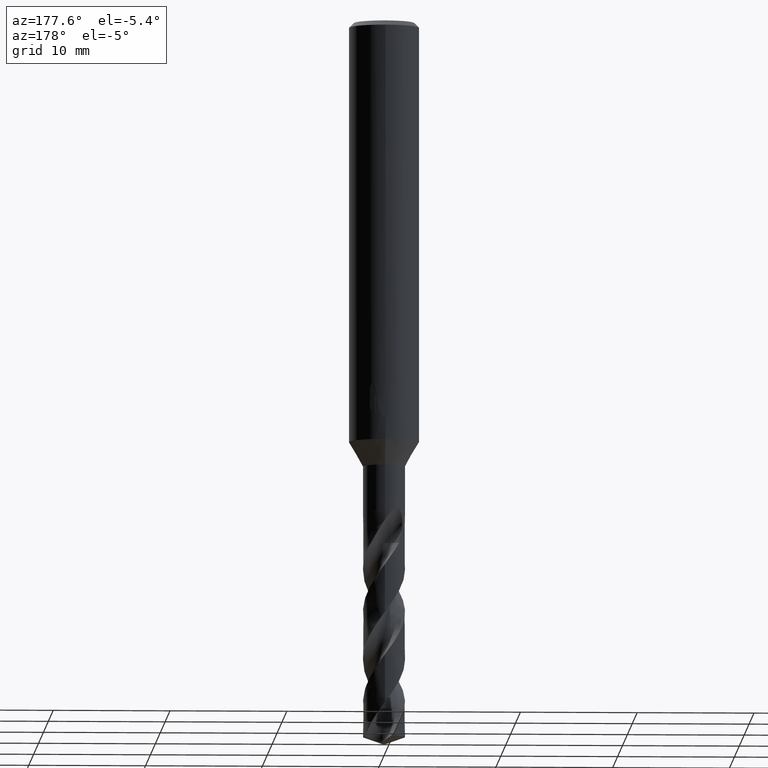
[diagram: clean part render]
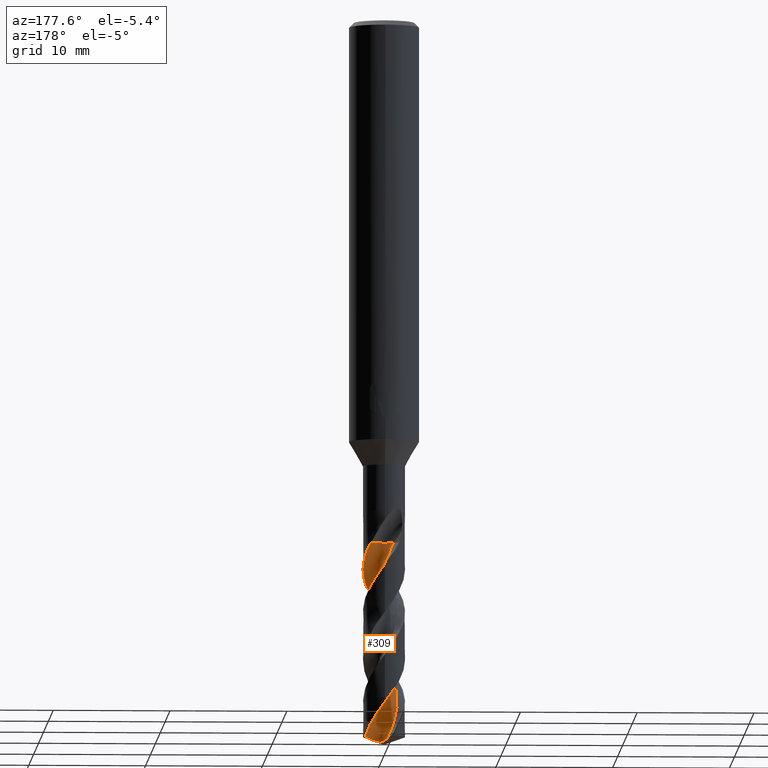
[diagram: same view with one face highlighted and labeled with its STEP entity id]
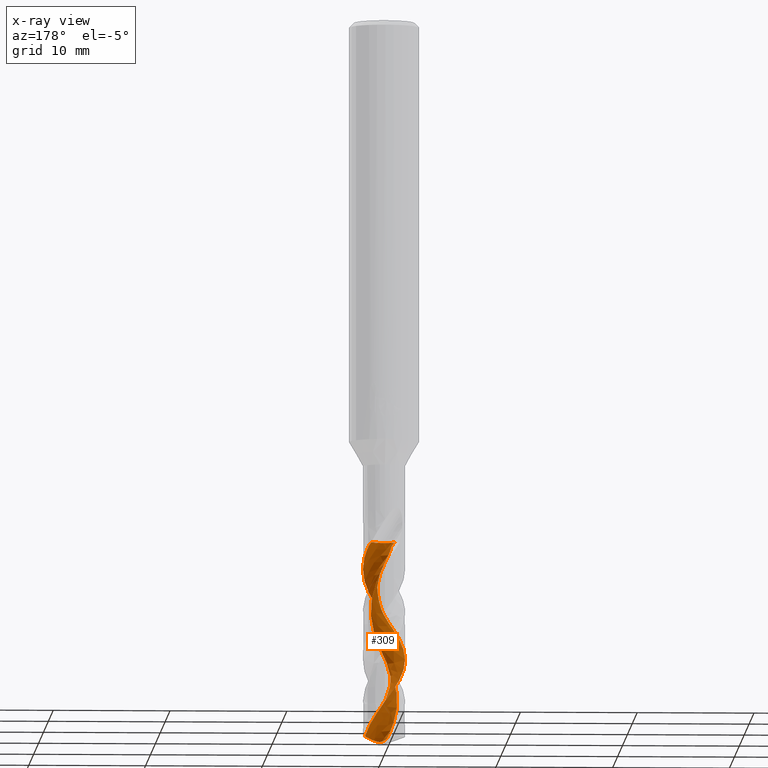
[diagram: x-ray of the same camera — body ghosted, the highlighted face saturated]
A machine part, auxiliary view. The second image highlights one B-rep face of the part: STEP entity #309.
The next image is the same camera in x-ray: the body ghosted, the highlighted face saturated — about 0% of this face is hidden behind the body in this view.
In plain terms, the highlighted face is a freeform B-spline surface patch.
Its self-contained STEP definition (entity closure, byte-faithful):
#291=VERTEX_POINT('',#783);
#299=EDGE_CURVE('',#345,#671,#791,.T.);
#309=ADVANCED_FACE('',(#801),#802,.F.);
#345=VERTEX_POINT('',#844);
#447=EDGE_CURVE('',#645,#291,#956,.T.);
#467=VERTEX_POINT('',#978);
#511=VERTEX_POINT('',#1026);
#513=EDGE_CURVE('',#467,#345,#1028,.T.);
#539=EDGE_CURVE('',#511,#467,#1055,.T.);
#595=EDGE_CURVE('',#627,#609,#1116,.T.);
#609=VERTEX_POINT('',#1131);
#619=EDGE_CURVE('',#609,#645,#1141,.T.);
#627=VERTEX_POINT('',#1149);
#645=VERTEX_POINT('',#1168);
#659=EDGE_CURVE('',#291,#511,#1184,.T.);
#671=VERTEX_POINT('',#1199);
#725=EDGE_CURVE('',#671,#627,#1258,.T.);
#783=CARTESIAN_POINT('',(-0.21188329132591,1.11259328683178,-61.5877712346967));
#791=B_SPLINE_CURVE_WITH_KNOTS('',3,(#1413,#1414,#1415,#1416,#1417,#1418,#1419,#1420,#1421,#1422,#1423,#1424,#1425,#1426,#1427,#1428,#1429,#1430,#1431,#1432,#1433,#1434,#1435,#1436,#1437,#1438,#1439,#1440,#1441,#1442,#1443,#1444,#1445,#1446,#1447,#1448,#1449,#1450,#1451,#1452,#1453,#1454,#1455,#1456,#1457,#1458,#1459,#1460,#1461,#1462,#1463,#1464,#1465,#1466,#1467,#1468,#1469,#1470,#1471,#1472,#1473,#1474,#1475,#1476,#1477,#1478,#1479,#1480,#1481,#1482,#1483,#1484,#1485,#1486,#1487,#1488,#1489,#1490,#1491,#1492,#1493,#1494,#1495,#1496,#1497,#1498),.UNSPECIFIED.,.F.,.F.,(4,2,2,2,2,2,2,2,2,2,2,2,2,2,2,2,2,2,2,2,2,2,2,2,2,2,2,2,2,2,2,2,2,2,2,2,2,2,2,2,2,2,4),(0.0,1.12411937850883,1.4932431578629,1.74453484658296,1.94282180254519,3.12705528970235,3.33654301421093,3.95056892485277,4.29934721858759,4.79735923409593,5.45424121163509,6.06638109328024,6.6873303927472,7.03621091570271,7.51308008982859,8.51715422776756,8.61247278511425,9.8791586941771,9.97483230088305,11.2588716347508,11.358157494541,12.0234976570868,12.3548364070515,12.8572200060827,13.5480554759429,14.2152524382053,14.8779690493979,15.1563712764979,15.5828066751763,16.1988722704703,16.9284814007126,18.6242820153683,18.8521417765642,19.1916112248645,19.5633325477469,19.8122534419274,20.0448524772916,20.1782541710186,20.2587676144974,20.3347366656234,20.4379736288783,20.6551002371308,20.9349925725072),.UNSPECIFIED.);
#801=FACE_OUTER_BOUND('',#1529,.T.);
#802=B_SPLINE_SURFACE_WITH_KNOTS('',3,3,((#1530,#1531,#1532,#1533,#1534,#1535,#1536,#1537,#1538,#1539,#1540,#1541,#1542,#1543,#1544,#1545,#1546,#1547,#1548,#1549,#1550,#1551,#1552,#1553,#1554,#1555,#1556,#1557,#1558,#1559,#1560,#1561,#1562,#1563,#1564,#1565,#1566,#1567,#1568,#1569,#1570,#1571,#1572,#1573,#1574,#1575,#1576,#1577,#1578,#1579,#1580,#1581,#1582),(#1583,#1584,#1585,#1586,#1587,#1588,#1589,#1590,#1591,#1592,#1593,#1594,#1595,#1596,#1597,#1598,#1599,#1600,#1601,#1602,#1603,#1604,#1605,#1606,#1607,#1608,#1609,#1610,#1611,#1612,#1613,#1614,#1615,#1616,#1617,#1618,#1619,#1620,#1621,#1622,#1623,#1624,#1625,#1626,#1627,#1628,#1629,#1630,#1631,#1632,#1633,#1634,#1635),(#1636,#1637,#1638,#1639,#1640,#1641,#1642,#1643,#1644,#1645,#1646,#1647,#1648,#1649,#1650,#1651,#1652,#1653,#1654,#1655,#1656,#1657,#1658,#1659,#1660,#1661,#1662,#1663,#1664,#1665,#1666,#1667,#1668,#1669,#1670,#1671,#1672,#1673,#1674,#1675,#1676,#1677,#1678,#1679,#1680,#1681,#1682,#1683,#1684,#1685,#1686,#1687,#1688),(#1689,#1690,#1691,#1692,#1693,#1694,#1695,#1696,#1697,#1698,#1699,#1700,#1701,#1702,#1703,#1704,#1705,#1706,#1707,#1708,#1709,#1710,#1711,#1712,#1713,#1714,#1715,#1716,#1717,#1718,#1719,#1720,#1721,#1722,#1723,#1724,#1725,#1726,#1727,#1728,#1729,#1730,#1731,#1732,#1733,#1734,#1735,#1736,#1737,#1738,#1739,#1740,#1741),(#1742,#1743,#1744,#1745,#1746,#1747,#1748,#1749,#1750,#1751,#1752,#1753,#1754,#1755,#1756,#1757,#1758,#1759,#1760,#1761,#1762,#1763,#1764,#1765,#1766,#1767,#1768,#1769,#1770,#1771,#1772,#1773,#1774,#1775,#1776,#1777,#1778,#1779,#1780,#1781,#1782,#1783,#1784,#1785,#1786,#1787,#1788,#1789,#1790,#1791,#1792,#1793,#1794),(#1795,#1796,#1797,#1798,#1799,#1800,#1801,#1802,#1803,#1804,#1805,#1806,#1807,#1808,#1809,#1810,#1811,#1812,#1813,#1814,#1815,#1816,#1817,#1818,#1819,#1820,#1821,#1822,#1823,#1824,#1825,#1826,#1827,#1828,#1829,#1830,#1831,#1832,#1833,#1834,#1835,#1836,#1837,#1838,#1839,#1840,#1841,#1842,#1843,#1844,#1845,#1846,#1847),(#1848,#1849,#1850,#1851,#1852,#1853,#1854,#1855,#1856,#1857,#1858,#1859,#1860,#1861,#1862,#1863,#1864,#1865,#1866,#1867,#1868,#1869,#1870,#1871,#1872,#1873,#1874,#1875,#1876,#1877,#1878,#1879,#1880,#1881,#1882,#1883,#1884,#1885,#1886,#1887,#1888,#1889,#1890,#1891,#1892,#1893,#1894,#1895,#1896,#1897,#1898,#1899,#1900),(#1901,#1902,#1903,#1904,#1905,#1906,#1907,#1908,#1909,#1910,#1911,#1912,#1913,#1914,#1915,#1916,#1917,#1918,#1919,#1920,#1921,#1922,#1923,#1924,#1925,#1926,#1927,#1928,#1929,#1930,#1931,#1932,#1933,#1934,#1935,#1936,#1937,#1938,#1939,#1940,#1941,#1942,#1943,#1944,#1945,#1946,#1947,#1948,#1949,#1950,#1951,#1952,#1953),(#1954,#1955,#1956,#1957,#1958,#1959,#1960,#1961,#1962,#1963,#1964,#1965,#1966,#1967,#1968,#1969,#1970,#1971,#1972,#1973,#1974,#1975,#1976,#1977,#1978,#1979,#1980,#1981,#1982,#1983,#1984,#1985,#1986,#1987,#1988,#1989,#1990,#1991,#1992,#1993,#1994,#1995,#1996,#1997,#1998,#1999,#2000,#2001,#2002,#2003,#2004,#2005,#2006),(#2007,#2008,#2009,#2010,#2011,#2012,#2013,#2014,#2015,#2016,#2017,#2018,#2019,#2020,#2021,#2022,#2023,#2024,#2025,#2026,#2027,#2028,#2029,#2030,#2031,#2032,#2033,#2034,#2035,#2036,#2037,#2038,#2039,#2040,#2041,#2042,#2043,#2044,#2045,#2046,#2047,#2048,#2049,#2050,#2051,#2052,#2053,#2054,#2055,#2056,#2057,#2058,#2059),(#2060,#2061,#2062,#2063,#2064,#2065,#2066,#2067,#2068,#2069,#2070,#2071,#2072,#2073,#2074,#2075,#2076,#2077,#2078,#2079,#2080,#2081,#2082,#2083,#2084,#2085,#2086,#2087,#2088,#2089,#2090,#2091,#2092,#2093,#2094,#2095,#2096,#2097,#2098,#2099,#2100,#2101,#2102,#2103,#2104,#2105,#2106,#2107,#2108,#2109,#2110,#2111,#2112)),.UNSPECIFIED.,.F.,.F.,.F.,(4,1,1,1,1,1,1,1,4),(4,1,2,2,2,2,1,2,1,2,1,2,1,2,1,2,1,2,1,2,1,2,1,2,1,2,1,2,1,2,1,2,1,4),(-7.10237126272731E-017,0.392702309184979,0.785404618369959,1.17810692755494,1.57080923673992,1.9635115459249,2.35621385510988,2.74891616429486,3.14161847347984),(0.0,0.385301839320835,0.770603678641669,1.54120735728334,2.31181103592501,3.08241471456668,3.85301839320835,4.62362207185001,5.39422575049168,6.16482942913335,6.93543310777502,7.70603678641669,8.47664046505836,9.24724414370003,10.0178478223417,10.7884515009834,11.559055179625,12.3296588582667,13.1002625369084,13.87086621555,14.6414698941917,15.4120735728334,16.182677251475,16.9532809301167,17.7238846087584,18.4944882874001,19.2650919660417,20.0356956446834,20.8062993233251,21.5769030019667,22.3475066806084,23.1181103592501,23.8887140378917,24.6593177165334),.UNSPECIFIED.);
#844=CARTESIAN_POINT('',(-1.37668461430599E-013,1.79998520870991,-58.4835001682654));
#956=B_SPLINE_CURVE_WITH_KNOTS('',3,(#2491,#2492,#2493,#2494,#2495,#2496,#2497,#2498,#2499,#2500,#2501,#2502,#2503,#2504,#2505,#2506,#2507,#2508,#2509,#2510,#2511,#2512,#2513,#2514,#2515,#2516,#2517,#2518,#2519,#2520,#2521,#2522,#2523,#2524,#2525,#2526,#2527,#2528,#2529,#2530,#2531,#2532,#2533,#2534,#2535,#2536,#2537,#2538,#2539,#2540,#2541,#2542,#2543),.UNSPECIFIED.,.F.,.F.,(4,1,2,2,2,2,1,2,1,2,1,2,1,2,1,2,1,2,1,2,1,2,1,2,1,2,1,2,1,2,1,2,1,4),(0.0,0.385301839320835,0.770603678641669,1.54120735728334,2.31181103592501,3.08241471456668,3.85301839320835,4.62362207185001,5.39422575049168,6.16482942913335,6.93543310777502,7.70603678641669,8.47664046505836,9.24724414370003,10.0178478223417,10.7884515009834,11.559055179625,12.3296588582667,13.1002625369084,13.87086621555,14.6414698941917,15.4120735728334,16.182677251475,16.9532809301167,17.7238846087584,18.4944882874001,19.2650919660417,20.0356956446834,20.8062993233251,21.5769030019667,22.3475066806084,23.1181103592501,23.8887140378917,24.6593177165334),.UNSPECIFIED.);
#978=CARTESIAN_POINT('',(1.64813797036206,0.723630589908155,-61.3448535783208));
#1026=CARTESIAN_POINT('',(2.9101007663133E-011,0.771448538881253,-61.7192156945791));
#1028=B_SPLINE_CURVE_WITH_KNOTS('',3,(#2806,#2807,#2808,#2809,#2810,#2811,#2812,#2813,#2814,#2815,#2816,#2817,#2818,#2819,#2820,#2821,#2822,#2823,#2824,#2825,#2826,#2827,#2828,#2829,#2830,#2831,#2832,#2833,#2834,#2835,#2836,#2837,#2838,#2839,#2840,#2841,#2842,#2843,#2844,#2845,#2846,#2847,#2848,#2849,#2850,#2851,#2852,#2853,#2854,#2855,#2856,#2857,#2858,#2859,#2860,#2861,#2862,#2863,#2864,#2865,#2866,#2867,#2868,#2869,#2870,#2871,#2872,#2873,#2874,#2875,#2876,#2877,#2878,#2879,#2880,#2881,#2882,#2883,#2884,#2885,#2886,#2887,#2888,#2889,#2890,#2891),.UNSPECIFIED.,.F.,.F.,(4,2,2,2,2,2,2,2,2,2,2,2,2,2,2,2,2,2,2,2,2,2,2,2,2,2,2,2,2,2,2,2,2,2,2,2,2,2,2,2,2,2,4),(0.0,1.12411937850883,1.4932431578629,1.74453484658296,1.94282180254519,3.12705528970235,3.33654301421093,3.95056892485277,4.29934721858759,4.79735923409593,5.45424121163509,6.06638109328024,6.6873303927472,7.03621091570271,7.51308008982859,8.51715422776756,8.61247278511425,9.8791586941771,9.97483230088305,11.2588716347508,11.358157494541,12.0234976570868,12.3548364070515,12.8572200060827,13.5480554759429,14.2152524382053,14.8779690493979,15.1563712764979,15.5828066751763,16.1988722704703,16.9284814007126,18.6242820153683,18.8521417765642,19.1916112248645,19.5633325477469,19.8122534419274,20.0448524772916,20.1782541710186,20.2587676144974,20.3347366656234,20.4379736288783,20.6551002371308,20.9349925725072),.UNSPECIFIED.);
#1055=B_SPLINE_CURVE_WITH_KNOTS('',3,(#3045,#3046,#3047,#3048,#3049,#3050,#3051,#3052,#3053,#3054,#3055,#3056,#3057,#3058,#3059,#3060,#3061,#3062,#3063,#3064),.UNSPECIFIED.,.F.,.F.,(4,2,2,2,2,2,2,2,2,4),(0.0,0.738891437149572,1.24860232181132,1.71918760501501,2.22535511390288,2.78124050139655,3.42390330882918,4.16250627982459,4.72015392106056,5.27958350378115),.UNSPECIFIED.);
#1116=CIRCLE('',#3423,1.2);
#1131=CARTESIAN_POINT('',(-0.148473559619173,0.549211001964637,-44.7266));
#1141=CIRCLE('',#3634,1.2);
#1149=CARTESIAN_POINT('',(1.14696331556465,1.38714307159205,-44.7266));
#1168=CARTESIAN_POINT('',(-0.848528137353147,0.891471862646855,-44.7266));
#1184=B_SPLINE_CURVE_WITH_KNOTS('',3,(#3691,#3692,#3693,#3694,#3695,#3696,#3697,#3698,#3699,#3700,#3701,#3702,#3703,#3704,#3705,#3706,#3707,#3708,#3709,#3710),.UNSPECIFIED.,.F.,.F.,(4,2,2,2,2,2,2,2,2,4),(0.0,0.738891437149572,1.24860232181132,1.71918760501501,2.22535511390288,2.78124050139655,3.42390330882918,4.16250627982459,4.72015392106056,5.27958350378115),.UNSPECIFIED.);
#1199=CARTESIAN_POINT('',(3.42723421595111E-013,-1.79994508140662,-50.7209321035855));
#1258=B_SPLINE_CURVE_WITH_KNOTS('',3,(#4971,#4972,#4973,#4974,#4975,#4976,#4977,#4978,#4979,#4980,#4981,#4982,#4983,#4984,#4985,#4986,#4987,#4988,#4989,#4990,#4991,#4992,#4993,#4994,#4995,#4996,#4997,#4998,#4999,#5000,#5001,#5002,#5003,#5004,#5005,#5006,#5007,#5008,#5009,#5010,#5011,#5012,#5013,#5014,#5015,#5016,#5017,#5018,#5019,#5020,#5021,#5022,#5023,#5024,#5025,#5026,#5027,#5028,#5029,#5030,#5031,#5032,#5033,#5034,#5035,#5036,#5037,#5038,#5039,#5040,#5041,#5042,#5043,#5044,#5045,#5046,#5047,#5048,#5049,#5050,#5051,#5052,#5053,#5054,#5055,#5056),.UNSPECIFIED.,.F.,.F.,(4,2,2,2,2,2,2,2,2,2,2,2,2,2,2,2,2,2,2,2,2,2,2,2,2,2,2,2,2,2,2,2,2,2,2,2,2,2,2,2,2,2,4),(0.0,1.12411937850883,1.4932431578629,1.74453484658296,1.94282180254519,3.12705528970235,3.33654301421093,3.95056892485277,4.29934721858759,4.79735923409593,5.45424121163509,6.06638109328024,6.6873303927472,7.03621091570271,7.51308008982859,8.51715422776756,8.61247278511425,9.8791586941771,9.97483230088305,11.2588716347508,11.358157494541,12.0234976570868,12.3548364070515,12.8572200060827,13.5480554759429,14.2152524382053,14.8779690493979,15.1563712764979,15.5828066751763,16.1988722704703,16.9284814007126,18.6242820153683,18.8521417765642,19.1916112248645,19.5633325477469,19.8122534419274,20.0448524772916,20.1782541710186,20.2587676144974,20.3347366656234,20.4379736288783,20.6551002371308,20.9349925725072),.UNSPECIFIED.);
#1413=CARTESIAN_POINT('',(1.64813797036207,0.723630589908134,-61.3448535783208));
#1414=CARTESIAN_POINT('',(1.55907774803342,0.926469889592956,-61.042645990568));
#1415=CARTESIAN_POINT('',(1.43361391520092,1.11064020456043,-60.7372898051597));
#1416=CARTESIAN_POINT('',(1.2270211977586,1.31896174882355,-60.3355519997542));
#1417=CARTESIAN_POINT('',(1.17289139857145,1.36731948227065,-60.2365341609858));
#1418=CARTESIAN_POINT('',(1.07727164562897,1.44287860735531,-60.0696093066375));
#1419=CARTESIAN_POINT('',(1.03736579009985,1.47182444577445,-60.0020378097576));
#1420=CARTESIAN_POINT('',(0.964069567250981,1.52054246193576,-59.8808563077578));
#1421=CARTESIAN_POINT('',(0.931131803032629,1.54092981962903,-59.8272911313196));
#1422=CARTESIAN_POINT('',(0.697110100503939,1.67555463498315,-59.4549919728864));
#1423=CARTESIAN_POINT('',(0.476568229126477,1.75104681226094,-59.1447401804162));
#1424=CARTESIAN_POINT('',(0.207389769091266,1.78846587517304,-58.7698019525189));
#1425=CARTESIAN_POINT('',(0.166796639476401,1.79270907333568,-58.713309883403));
#1426=CARTESIAN_POINT('',(0.00626075531901989,1.80396947884713,-58.4914569166517));
#1427=CARTESIAN_POINT('',(-0.114251179135691,1.80039820308208,-58.327386627822));
#1428=CARTESIAN_POINT('',(-0.301744101937259,1.77583271181215,-58.0688170197066));
#1429=CARTESIAN_POINT('',(-0.369011604240394,1.76307551931604,-57.9753343221906));
#1430=CARTESIAN_POINT('',(-0.529959009094546,1.72296049084687,-57.7476037638622));
#1431=CARTESIAN_POINT('',(-0.62235069277372,1.69177452520686,-57.6128203374529));
#1432=CARTESIAN_POINT('',(-0.829853668423754,1.60242932097898,-57.3022338328595));
#1433=CARTESIAN_POINT('',(-0.942227196385525,1.53906642327382,-57.1271909666176));
#1434=CARTESIAN_POINT('',(-1.14466627250016,1.39429785880418,-56.7865309398708));
#1435=CARTESIAN_POINT('',(-1.23487435841932,1.31500752262421,-56.6212701272983));
#1436=CARTESIAN_POINT('',(-1.39887312298837,1.13917527821524,-56.2902176485387));
#1437=CARTESIAN_POINT('',(-1.47246889320131,1.04236220257706,-56.1248810824595));
#1438=CARTESIAN_POINT('',(-1.5714856071031,0.880339102184326,-55.8651875540694));
#1439=CARTESIAN_POINT('',(-1.6036983788001,0.82017203581632,-55.7719328090973));
#1440=CARTESIAN_POINT('',(-1.67158944341539,0.6740469264791,-55.5504203104152));
#1441=CARTESIAN_POINT('',(-1.70417564330596,0.586813163053017,-55.4216887822241));
#1442=CARTESIAN_POINT('',(-1.78408654621478,0.308828319284572,-55.0242993136392));
#1443=CARTESIAN_POINT('',(-1.80700792243471,0.113051476902175,-54.7601237023661));
#1444=CARTESIAN_POINT('',(-1.79724254174561,-0.100674224441311,-54.464797966717));
#1445=CARTESIAN_POINT('',(-1.79611198863629,-0.119145169149421,-54.4391912996098));
#1446=CARTESIAN_POINT('',(-1.77589964286558,-0.382758900546187,-54.0739119864541));
#1447=CARTESIAN_POINT('',(-1.70713418896742,-0.621195054441694,-53.7447953152977));
#1448=CARTESIAN_POINT('',(-1.58406144317037,-0.854953396598555,-53.3800623158807));
#1449=CARTESIAN_POINT('',(-1.57518617507204,-0.871196372019977,-53.3544481625901));
#1450=CARTESIAN_POINT('',(-1.44346487782747,-1.1036713656982,-52.9853412044572));
#1451=CARTESIAN_POINT('',(-1.27758688684092,-1.29199484596805,-52.652777081993));
#1452=CARTESIAN_POINT('',(-1.06348245876841,-1.45231021823201,-52.2832428848104));
#1453=CARTESIAN_POINT('',(-1.04793896165466,-1.4635662328258,-52.2566931505838));
#1454=CARTESIAN_POINT('',(-0.926362385049981,-1.54866205452485,-52.0518159455877));
#1455=CARTESIAN_POINT('',(-0.812632690417968,-1.61131095403364,-51.8751725728721));
#1456=CARTESIAN_POINT('',(-0.633046759690104,-1.68619533538561,-51.6091000273149));
#1457=CARTESIAN_POINT('',(-0.572109177416679,-1.70782742543871,-51.5208044723663));
#1458=CARTESIAN_POINT('',(-0.416356979094605,-1.75386368390836,-51.2979845171399));
#1459=CARTESIAN_POINT('',(-0.320621182370524,-1.77384723723663,-51.1628616496623));
#1460=CARTESIAN_POINT('',(-0.0906606749570398,-1.80266184626367,-50.8440055647848));
#1461=CARTESIAN_POINT('',(0.0441027642111299,-1.80443093856637,-50.6612385619046));
#1462=CARTESIAN_POINT('',(0.307382875128674,-1.77825943580282,-50.2991292145061));
#1463=CARTESIAN_POINT('',(0.434683369923676,-1.75145090768321,-50.1201307272249));
#1464=CARTESIAN_POINT('',(0.679879961549076,-1.67154494306805,-49.7653636425828));
#1465=CARTESIAN_POINT('',(0.797614628618641,-1.61870562412383,-49.5901835547185));
#1466=CARTESIAN_POINT('',(0.955615942123528,-1.52627227900258,-49.339657838703));
#1467=CARTESIAN_POINT('',(1.00102479193548,-1.4968762440801,-49.2656099347148));
#1468=CARTESIAN_POINT('',(1.11229826097272,-1.4175333679182,-49.0776670900645));
#1469=CARTESIAN_POINT('',(1.17613549129346,-1.3650342473203,-48.9633459819636));
#1470=CARTESIAN_POINT('',(1.32312444757137,-1.22612785948295,-48.6853028288745));
#1471=CARTESIAN_POINT('',(1.40171380251515,-1.13548631314092,-48.522348676146));
#1472=CARTESIAN_POINT('',(1.55264291375247,-0.92152527966852,-48.1641694251236));
#1473=CARTESIAN_POINT('',(1.6202676213095,-0.796499999669646,-47.9687973541768));
#1474=CARTESIAN_POINT('',(1.79372957481391,-0.360457642942576,-47.322756879243));
#1475=CARTESIAN_POINT('',(1.82915790033174,-0.0284827515013861,-46.8857075212188));
#1476=CARTESIAN_POINT('',(1.76855867918271,0.337419023803383,-46.3732775690689));
#1477=CARTESIAN_POINT('',(1.75982907018491,0.380331029271562,-46.3124337281051));
#1478=CARTESIAN_POINT('',(1.73412200018295,0.486643208347412,-46.1613957311078));
#1479=CARTESIAN_POINT('',(1.71518338033668,0.549785935406017,-46.0712260080041));
#1480=CARTESIAN_POINT('',(1.66790218927407,0.680509904406541,-45.8832259263831));
#1481=CARTESIAN_POINT('',(1.6400803161184,0.744875234609904,-45.7911047572246));
#1482=CARTESIAN_POINT('',(1.58712240861899,0.850287349793126,-45.6316260973422));
#1483=CARTESIAN_POINT('',(1.56456372661364,0.891031622251414,-45.567530859474));
#1484=CARTESIAN_POINT('',(1.51885418093429,0.966753052976766,-45.4416666742133));
#1485=CARTESIAN_POINT('',(1.49601647979835,1.00164251700029,-45.3804981274337));
#1486=CARTESIAN_POINT('',(1.4592650804944,1.05393989294739,-45.2825509388738));
#1487=CARTESIAN_POINT('',(1.45055092229077,1.06585946107911,-45.2587093176342));
#1488=CARTESIAN_POINT('',(1.43000131552279,1.09314280874647,-45.2071168131108));
#1489=CARTESIAN_POINT('',(1.42202528444636,1.10350397142383,-45.1878748871244));
#1490=CARTESIAN_POINT('',(1.40599521335121,1.12384794884589,-45.1507607516467));
#1491=CARTESIAN_POINT('',(1.3979847289324,1.13380153804254,-45.1329044938427));
#1492=CARTESIAN_POINT('',(1.37850096129064,1.15747335948389,-45.0911177579218));
#1493=CARTESIAN_POINT('',(1.36684174111089,1.17123035982654,-45.0673610340407));
#1494=CARTESIAN_POINT('',(1.32917701866604,1.21428468944972,-44.9944876789021));
#1495=CARTESIAN_POINT('',(1.30171106432603,1.24378660886006,-44.9466473358465));
#1496=CARTESIAN_POINT('',(1.23372918026989,1.31169092016938,-44.8398365080951));
#1497=CARTESIAN_POINT('',(1.19215055044194,1.34978024760456,-44.782305809162));
#1498=CARTESIAN_POINT('',(1.14696331556465,1.38714307159205,-44.7266));
#1529=EDGE_LOOP('',(#5192,#5193,#5194,#5195,#5196,#5197,#5198,#5199));
#1530=CARTESIAN_POINT('',(0.848528137353148,2.58852813735315,-44.7266));
#1531=CARTESIAN_POINT('',(0.940321472105816,2.58125944125773,-44.8163922050913));
#1532=CARTESIAN_POINT('',(1.1259574380431,2.54761521415869,-44.9975200994104));
#1533=CARTESIAN_POINT('',(1.30871037844844,2.46252716891185,-45.1791938719361));
#1534=CARTESIAN_POINT('',(1.56972027244343,2.28804669368175,-45.4473700431753));
#1535=CARTESIAN_POINT('',(1.72953938066751,2.16060657200537,-45.6252412749366));
#1536=CARTESIAN_POINT('',(2.02803774582319,1.89495328633317,-45.987404681045));
#1537=CARTESIAN_POINT('',(2.16237318868029,1.74425990371362,-46.168222258065));
#1538=CARTESIAN_POINT('',(2.39043788665394,1.41026712484654,-46.5270776982098));
#1539=CARTESIAN_POINT('',(2.4869418374963,1.23165270605831,-46.706760857255));
#1540=CARTESIAN_POINT('',(2.63835903830618,0.857283196461919,-47.0670646834097));
#1541=CARTESIAN_POINT('',(2.75030213598553,0.468197533765027,-47.4271212106509));
#1542=CARTESIAN_POINT('',(2.77592029311296,0.0637829197472876,-47.7874079015328));
#1543=CARTESIAN_POINT('',(2.75378448426302,-0.339652919354027,-48.1472397549592));
#1544=CARTESIAN_POINT('',(2.68982835916677,-0.739652357715545,-48.506857670488));
#1545=CARTESIAN_POINT('',(2.54179191047885,-1.11707250169472,-48.8670694165298));
#1546=CARTESIAN_POINT('',(2.35111231059657,-1.47334762791858,-49.2270965725037));
#1547=CARTESIAN_POINT('',(2.12392771400091,-1.80872386646407,-49.5868655743223));
#1548=CARTESIAN_POINT('',(1.83006110114326,-2.08792843244732,-49.9470911211843));
#1549=CARTESIAN_POINT('',(1.50652113705539,-2.32996500818374,-50.3070588916646));
#1550=CARTESIAN_POINT('',(1.15875587116498,-2.53766005175158,-50.6667869477667));
#1551=CARTESIAN_POINT('',(0.774330614615184,-2.66627219400988,-51.0270114123814));
#1552=CARTESIAN_POINT('',(0.378744477609738,-2.74862420730633,-51.3869943799468));
#1553=CARTESIAN_POINT('',(-0.0242486082561222,-2.7895974812441,-51.7467318214673));
#1554=CARTESIAN_POINT('',(-0.42697282433152,-2.74340460410915,-52.106955635941));
#1555=CARTESIAN_POINT('',(-0.8202301171086,-2.65058734855094,-52.466934952204));
#1556=CARTESIAN_POINT('',(-1.20268830147375,-2.51714689846627,-52.8266706371187));
#1557=CARTESIAN_POINT('',(-1.54801181944236,-2.30484131068367,-53.1868947244826));
#1558=CARTESIAN_POINT('',(-1.8650217625953,-2.05429534185102,-53.546874223754));
#1559=CARTESIAN_POINT('',(-2.15505219333094,-1.77151472283756,-53.9066099279584));
#1560=CARTESIAN_POINT('',(-2.37805586619381,-1.43299928141694,-54.2668342109115));
#1561=CARTESIAN_POINT('',(-2.55922038263419,-1.07182208895324,-54.6268141075194));
#1562=CARTESIAN_POINT('',(-2.70229697420434,-0.692860533366321,-54.9865497434484));
#1563=CARTESIAN_POINT('',(-2.76105876214471,-0.291774972159363,-55.3467741808107));
#1564=CARTESIAN_POINT('',(-2.77232451396896,0.112132742749961,-55.706754945837));
#1565=CARTESIAN_POINT('',(-2.74155674454384,0.516031678145436,-56.0664911455266));
#1566=CARTESIAN_POINT('',(-2.62504051271848,0.904288932387305,-56.4267151314551));
#1567=CARTESIAN_POINT('',(-2.46430119215192,1.27500148130385,-56.7866948310922));
#1568=CARTESIAN_POINT('',(-2.26547691262363,1.6279166658996,-57.1464299970302));
#1569=CARTESIAN_POINT('',(-1.99556777379802,1.93036360984077,-57.5066522318499));
#1570=CARTESIAN_POINT('',(-1.69301039373013,2.19819586489639,-57.8666300399317));
#1571=CARTESIAN_POINT('',(-1.3634944499788,2.43379314945854,-58.2263699572164));
#1572=CARTESIAN_POINT('',(-0.990960617167156,2.59358669686769,-58.5866058286068));
#1573=CARTESIAN_POINT('',(-0.6035128822234,2.7081841898546,-58.9465960266333));
#1574=CARTESIAN_POINT('',(-0.205279776016518,2.78211926420119,-59.3063104581733));
#1575=CARTESIAN_POINT('',(0.19988173931961,2.76921333279531,-59.6664875886492));
#1576=CARTESIAN_POINT('',(0.599511389445154,2.70916474147744,-60.0264380310331));
#1577=CARTESIAN_POINT('',(0.991833414034826,2.60775548981802,-60.3862751618533));
#1578=CARTESIAN_POINT('',(1.3534382299421,2.42418804414559,-60.746658150469));
#1579=CARTESIAN_POINT('',(1.68951843019195,2.1997428186098,-61.1066867628948));
#1580=CARTESIAN_POINT('',(2.001029563659,1.94157876574175,-61.4660681824878));
#1581=CARTESIAN_POINT('',(2.25183706379379,1.62468792232212,-61.8257884151701));
#1582=CARTESIAN_POINT('',(2.35822679723893,1.45382580092875,-62.0056752249812));
#1583=CARTESIAN_POINT('',(0.959597003852408,2.47745103144775,-44.7266));
#1584=CARTESIAN_POINT('',(1.05112089231295,2.46991290940526,-44.8163844861981));
#1585=CARTESIAN_POINT('',(1.23384249174579,2.43327570287049,-44.9976760173501));
#1586=CARTESIAN_POINT('',(1.40821287812625,2.34075965404213,-45.1795633258102));
#1587=CARTESIAN_POINT('',(1.6515620501268,2.15317172038188,-45.447471660816));
#1588=CARTESIAN_POINT('',(1.80043284584111,2.02004176047655,-45.6250564565081));
#1589=CARTESIAN_POINT('',(2.07962342881096,1.74621458789978,-45.9875291984583));
#1590=CARTESIAN_POINT('',(2.20332291821475,1.59215465504678,-46.1684596545824));
#1591=CARTESIAN_POINT('',(2.40826881870059,1.25375869972705,-46.5271571977295));
#1592=CARTESIAN_POINT('',(2.49327695890088,1.07427719203441,-46.7067982393853));
#1593=CARTESIAN_POINT('',(2.62166597347485,0.700667683902725,-47.067147635465));
#1594=CARTESIAN_POINT('',(2.71113383299281,0.314828957035572,-47.4272148777449));
#1595=CARTESIAN_POINT('',(2.71534285073391,-0.0816147129872713,-47.7875439149588));
#1596=CARTESIAN_POINT('',(2.67242649312123,-0.47452646924846,-48.14735503062));
#1597=CARTESIAN_POINT('',(2.58937067276146,-0.861987256907557,-48.5069226094688));
#1598=CARTESIAN_POINT('',(2.42533541699702,-1.22312677342285,-48.8671666399341));
#1599=CARTESIAN_POINT('',(2.22031182389292,-1.56110153862162,-49.2272003959168));
#1600=CARTESIAN_POINT('',(1.98113573960691,-1.87704733678712,-49.5869400804804));
#1601=CARTESIAN_POINT('',(1.67966179871536,-2.13472258247463,-49.9471997379958));
#1602=CARTESIAN_POINT('',(1.35087164709199,-2.35410573301725,-50.3071658002386));
#1603=CARTESIAN_POINT('',(1.00046705249981,-2.53912394340592,-50.6668588447778));
#1604=CARTESIAN_POINT('',(0.618261008552765,-2.64501339238955,-51.0271172937379));
#1605=CARTESIAN_POINT('',(0.22750632809526,-2.70461766905439,-51.3871006794034));
#1606=CARTESIAN_POINT('',(-0.168279426751336,-2.72392656769563,-51.7468044139006));
#1607=CARTESIAN_POINT('',(-0.559374997748779,-2.6580857374003,-52.1070621181591));
#1608=CARTESIAN_POINT('',(-0.938627498185666,-2.54670472372411,-52.4670413388564));
#1609=CARTESIAN_POINT('',(-1.30538692888438,-2.39668726721097,-52.8267430757125));
#1610=CARTESIAN_POINT('',(-1.63185861539507,-2.17150200535385,-53.1870010915737));
#1611=CARTESIAN_POINT('',(-1.92832208014228,-1.91006420925463,-53.5469805191708));
#1612=CARTESIAN_POINT('',(-2.19711225601085,-1.61890901410057,-53.9066822725708));
#1613=CARTESIAN_POINT('',(-2.39758406514143,-1.27670369638715,-54.2669405151452));
#1614=CARTESIAN_POINT('',(-2.55552278331799,-0.914355003856392,-54.6269203998074));
#1615=CARTESIAN_POINT('',(-2.67581067355416,-0.536796360494766,-54.9866220977991));
#1616=CARTESIAN_POINT('',(-2.7125969790569,-0.1419046627765,-55.3468805041989));
#1617=CARTESIAN_POINT('',(-2.70232465640362,0.253234013915238,-55.7068613528452));
#1618=CARTESIAN_POINT('',(-2.65150457867892,0.646216651843904,-56.0665636194745));
#1619=CARTESIAN_POINT('',(-2.5177007263146,1.01956169417543,-56.4268215416781));
#1620=CARTESIAN_POINT('',(-2.34115993945385,1.37321434326652,-56.786801289098));
#1621=CARTESIAN_POINT('',(-2.12878793712246,1.70775208727912,-57.1465026300858));
#1622=CARTESIAN_POINT('',(-1.84952665194448,1.98936920752614,-57.5067584775761));
#1623=CARTESIAN_POINT('',(-1.53987315595498,2.2350543924515,-57.8667356166976));
#1624=CARTESIAN_POINT('',(-1.20586227753783,2.44826865904723,-58.226441474932));
#1625=CARTESIAN_POINT('',(-0.833671354985206,2.58523587465031,-58.5867130949562));
#1626=CARTESIAN_POINT('',(-0.449167651021308,2.67676616071585,-58.9467061121719));
#1627=CARTESIAN_POINT('',(-0.0563367652947005,2.72851257631504,-59.3063862334287));
#1628=CARTESIAN_POINT('',(0.338851097069435,2.6950716878373,-59.6665899663456));
#1629=CARTESIAN_POINT('',(0.726059199158013,2.61538300538421,-60.0265309118843));
#1630=CARTESIAN_POINT('',(1.10411032106522,2.49616703533757,-60.3863381929401));
#1631=CARTESIAN_POINT('',(1.44793958286153,2.29816978422319,-60.7467765600947));
#1632=CARTESIAN_POINT('',(1.76432563611232,2.06112507919174,-61.1068252652169));
#1633=CARTESIAN_POINT('',(2.05534135452124,1.79291217655975,-61.4661507967008));
#1634=CARTESIAN_POINT('',(2.28435759845814,1.47059177570999,-61.825876068692));
#1635=CARTESIAN_POINT('',(2.37950077058961,1.29819217405625,-62.0057690663847));
#1636=CARTESIAN_POINT('',(1.1375164948806,2.21117542453956,-44.7266));
#1637=CARTESIAN_POINT('',(1.22839446348448,2.20320571456551,-44.8163717909607));
#1638=CARTESIAN_POINT('',(1.40409835251035,2.16174276844194,-44.9979324523184));
#1639=CARTESIAN_POINT('',(1.55875346325203,2.05770702270029,-45.1801709594818));
#1640=CARTESIAN_POINT('',(1.76157605670518,1.85093301799984,-45.4476387885799));
#1641=CARTESIAN_POINT('',(1.88629224162431,1.71077948296251,-45.6247524888543));
#1642=CARTESIAN_POINT('',(2.12362490959259,1.42828604964085,-45.9877339902518));
#1643=CARTESIAN_POINT('',(2.22471823635693,1.27172384601787,-46.1688500971732));
#1644=CARTESIAN_POINT('',(2.38168526879323,0.93371703698447,-46.5272879476417));
#1645=CARTESIAN_POINT('',(2.44336182218952,0.757073197030891,-46.7068597188338));
#1646=CARTESIAN_POINT('',(2.5260063953343,0.394140855781938,-47.067284067216));
#1647=CARTESIAN_POINT('',(2.57182442591292,0.0237322434359877,-47.4273689301742));
#1648=CARTESIAN_POINT('',(2.53639394211428,-0.348259254142184,-47.787767611194));
#1649=CARTESIAN_POINT('',(2.45611028756826,-0.711863569819436,-48.1475446244608));
#1650=CARTESIAN_POINT('',(2.33984932272051,-1.06665704461043,-48.5070294102836));
#1651=CARTESIAN_POINT('',(2.15029741394203,-1.38888000342382,-48.8673265450414));
#1652=CARTESIAN_POINT('',(1.92386927673488,-1.68455765819304,-49.2273711484476));
#1653=CARTESIAN_POINT('',(1.66844208679793,-1.95688215118264,-49.5870626220282));
#1654=CARTESIAN_POINT('',(1.36031812671612,-2.16848267151434,-49.9473783760569));
#1655=CARTESIAN_POINT('',(1.0300382879764,-2.34048067990852,-50.3073416324174));
#1656=CARTESIAN_POINT('',(0.683373938265489,-2.47910521653164,-50.6669770917247));
#1657=CARTESIAN_POINT('',(0.314641387133936,-2.5404413434647,-51.0272914340883));
#1658=CARTESIAN_POINT('',(-0.0574064384033372,-2.55648102584463,-51.3872755085391));
#1659=CARTESIAN_POINT('',(-0.430165393499327,-2.53533640647581,-51.7469238080859));
#1660=CARTESIAN_POINT('',(-0.790195282070522,-2.4348322341415,-52.1072372409741));
#1661=CARTESIAN_POINT('',(-1.13406194151827,-2.2919007397814,-52.4672163171655));
#1662=CARTESIAN_POINT('',(-1.46283837388318,-2.11497910019576,-52.8268622145965));
#1663=CARTESIAN_POINT('',(-1.74649254677413,-1.87153661501299,-53.1871760238519));
#1664=CARTESIAN_POINT('',(-1.99754041330208,-1.59649035962924,-53.5471553486067));
#1665=CARTESIAN_POINT('',(-2.22052873802859,-1.29703605838781,-53.9068012590816));
#1666=CARTESIAN_POINT('',(-2.37447898923134,-0.956412655746507,-54.2671153384732));
#1667=CARTESIAN_POINT('',(-2.48551000808929,-0.600957540554058,-54.6270952296787));
#1668=CARTESIAN_POINT('',(-2.56078799718785,-0.235266410497479,-54.9867410913405));
#1669=CARTESIAN_POINT('',(-2.55609566339814,0.138501305731792,-55.3470553714425));
#1670=CARTESIAN_POINT('',(-2.5062433990835,0.507540662901344,-55.7070363589826));
#1671=CARTESIAN_POINT('',(-2.41966818597061,0.870721192456221,-56.0666828274838));
#1672=CARTESIAN_POINT('',(-2.25722642158268,1.20737342299752,-56.4269965285891));
#1673=CARTESIAN_POINT('',(-2.05587348117634,1.52062976650523,-56.7869764022456));
#1674=CARTESIAN_POINT('',(-1.82371981049844,1.81303290783186,-57.1466220718756));
#1675=CARTESIAN_POINT('',(-1.53404144729749,2.04928013999774,-57.5069332265938));
#1676=CARTESIAN_POINT('',(-1.21900581741223,2.24785862961645,-57.866909247854));
#1677=CARTESIAN_POINT('',(-0.884907919412997,2.41452881211274,-58.2265590989195));
#1678=CARTESIAN_POINT('',(-0.522479882085688,2.5059893325821,-58.5868895220651));
#1679=CARTESIAN_POINT('',(-0.153036022440461,2.5525656602663,-58.94688715932));
#1680=CARTESIAN_POINT('',(0.220169037479611,2.56209237398422,-59.3065108611114));
#1681=CARTESIAN_POINT('',(0.587247772114173,2.49155639148291,-59.6667583498819));
#1682=CARTESIAN_POINT('',(0.941807831114792,2.37753540417329,-60.026683666138));
#1683=CARTESIAN_POINT('',(1.28424204300318,2.22838854733489,-60.3864418619595));
#1684=CARTESIAN_POINT('',(1.58678947192662,2.00860645540846,-60.7469713048948));
#1685=CARTESIAN_POINT('',(1.85878515319091,1.75419975014775,-61.1070530582844));
#1686=CARTESIAN_POINT('',(2.10482258648762,1.47404371764874,-61.4662866571139));
#1687=CARTESIAN_POINT('',(2.28810635539242,1.14953209746956,-61.8260202565848));
#1688=CARTESIAN_POINT('',(2.36014973700019,0.978530543890449,-62.0059234054462));
#1689=CARTESIAN_POINT('',(1.23124426220997,1.73999999876233,-44.7265999999999));
#1690=CARTESIAN_POINT('',(1.32097927411918,1.73180292908678,-44.8163638658917));
#1691=CARTESIAN_POINT('',(1.4841868429886,1.68768044042906,-44.9980925349104));
#1692=CARTESIAN_POINT('',(1.60490558036698,1.57899611865109,-45.1805502823832));
#1693=CARTESIAN_POINT('',(1.74054651792085,1.36889667836087,-45.4477431199446));
#1694=CARTESIAN_POINT('',(1.82775429088865,1.23287486004335,-45.6245627340114));
#1695=CARTESIAN_POINT('',(2.00209975719165,0.96239939269143,-45.9878618333432));
#1696=CARTESIAN_POINT('',(2.07042615479243,0.815346004111284,-46.1690938354542));
#1697=CARTESIAN_POINT('',(2.16112100276131,0.505421313269695,-46.5273695701983));
#1698=CARTESIAN_POINT('',(2.19209054041708,0.346103879741252,-46.7068981000818));
#1699=CARTESIAN_POINT('',(2.21746567595611,0.0242291238692506,-47.0673692344725));
#1700=CARTESIAN_POINT('',(2.21164571491098,-0.299737042076347,-47.4274651003179));
#1701=CARTESIAN_POINT('',(2.13531439138253,-0.615084317347454,-47.7879072562343));
#1702=CARTESIAN_POINT('',(2.02006625176773,-0.916619612264575,-48.1476629808401));
#1703=CARTESIAN_POINT('',(1.87653803088575,-1.2070767822885,-48.5070960823073));
#1704=CARTESIAN_POINT('',(1.67396194680345,-1.4607161150523,-48.8674263670809));
#1705=CARTESIAN_POINT('',(1.44214938237849,-1.68548545660373,-49.2274777435096));
#1706=CARTESIAN_POINT('',(1.18924027150869,-1.88802473337955,-49.587139119812));
#1707=CARTESIAN_POINT('',(0.898349186784302,-2.03195132846415,-49.9474898929452));
#1708=CARTESIAN_POINT('',(0.593206371202127,-2.13742156973732,-50.3074513979411));
#1709=CARTESIAN_POINT('',(0.278358279841978,-2.21389468954319,-50.667050908792));
#1710=CARTESIAN_POINT('',(-0.0461249438887214,-2.22121743312254,-51.0274001433131));
#1711=CARTESIAN_POINT('',(-0.367237897496744,-2.18761826916415,-51.3873846478162));
#1712=CARTESIAN_POINT('',(-0.68486070587682,-2.12362644094531,-51.7469983399748));
#1713=CARTESIAN_POINT('',(-0.981937061095569,-1.99291458150596,-52.1073465663194));
#1714=CARTESIAN_POINT('',(-1.25864964209969,-1.82656962969148,-52.4673255467586));
#1715=CARTESIAN_POINT('',(-1.519339709367,-1.63416493511376,-52.8269365877189));
#1716=CARTESIAN_POINT('',(-1.73317109081406,-1.38999870439746,-53.1872852318428));
#1717=CARTESIAN_POINT('',(-1.91346400174212,-1.12216305347595,-53.547264483678));
#1718=CARTESIAN_POINT('',(-2.06820989951515,-0.837499531226369,-53.9068755380426));
#1719=CARTESIAN_POINT('',(-2.1585925138226,-0.525774408338517,-54.2672244781047));
#1720=CARTESIAN_POINT('',(-2.2085699202262,-0.206800882672446,-54.6272043653587));
#1721=CARTESIAN_POINT('',(-2.22827980550011,0.116604508902184,-54.9868153742547));
#1722=CARTESIAN_POINT('',(-2.17822718092041,0.437284868992109,-55.3471645390203));
#1723=CARTESIAN_POINT('',(-2.08850220216554,0.747431301035353,-55.7071456041705));
#1724=CARTESIAN_POINT('',(-1.96948082458521,1.04878269287338,-56.0667572407723));
#1725=CARTESIAN_POINT('',(-1.78841248455154,1.31814148430225,-56.4271057784304));
#1726=CARTESIAN_POINT('',(-1.57586122887367,1.56116775123224,-56.7870857066818));
#1727=CARTESIAN_POINT('',(-1.34047908150191,1.78381939722307,-57.1466966431288));
#1728=CARTESIAN_POINT('',(-1.06240808260625,1.95120707612222,-57.5070423114418));
#1729=CARTESIAN_POINT('',(-0.766954971051356,2.08140922590967,-57.867017643619));
#1730=CARTESIAN_POINT('',(-0.459455335302659,2.18352247707803,-58.226632527052));
#1731=CARTESIAN_POINT('',(-0.136681261972318,2.21751821910116,-58.5869996546641));
#1732=CARTESIAN_POINT('',(0.186084671140455,2.21043654877559,-58.9470001844257));
#1733=CARTESIAN_POINT('',(0.507853217489101,2.17271589962834,-59.3065886603111));
#1734=CARTESIAN_POINT('',(0.814680036075424,2.06690476249553,-59.6668634635156));
#1735=CARTESIAN_POINT('',(1.10428349683341,1.92404326868777,-60.0267790267195));
#1736=CARTESIAN_POINT('',(1.3801730952376,1.75386027827156,-60.3865065813515));
#1737=CARTESIAN_POINT('',(1.61300105772115,1.52758381704536,-60.7470928694168));
#1738=CARTESIAN_POINT('',(1.81350796645055,1.27459699940972,-61.1071952682369));
#1739=CARTESIAN_POINT('',(1.99035246963468,1.00370863153342,-61.4663714787119));
#1740=CARTESIAN_POINT('',(2.1089962426753,0.702413040749523,-61.826110242209));
#1741=CARTESIAN_POINT('',(2.14982743017761,0.5466096087702,-62.0060197535037));
#1742=CARTESIAN_POINT('',(1.13752487817287,1.26882290543073,-44.7266));
#1743=CARTESIAN_POINT('',(1.22611692973416,1.26085317627126,-44.8163682669356));
#1744=CARTESIAN_POINT('',(1.37676161367395,1.21905581567152,-44.9980036393144));
#1745=CARTESIAN_POINT('',(1.46434914377383,1.11906335796991,-45.1803396406776));
#1746=CARTESIAN_POINT('',(1.53664887292582,0.931601504143065,-45.447685183511));
#1747=CARTESIAN_POINT('',(1.5907847945448,0.813750785512101,-45.6246681072245));
#1748=CARTESIAN_POINT('',(1.71153676911171,0.578482881949523,-45.9877908403447));
#1749=CARTESIAN_POINT('',(1.7532296663289,0.452753648598461,-46.1689584851045));
#1750=CARTESIAN_POINT('',(1.79344349951057,0.194135127998311,-46.5273242444237));
#1751=CARTESIAN_POINT('',(1.80267408530036,0.0625763474523014,-46.7068767878362));
#1752=CARTESIAN_POINT('',(1.790851424719,-0.199449994508442,-47.067321939));
#1753=CARTESIAN_POINT('',(1.75509713680578,-0.460747848569046,-47.4274116964262));
#1754=CARTESIAN_POINT('',(1.6626553821688,-0.708110631557482,-47.7878297104911));
#1755=CARTESIAN_POINT('',(1.53885726624475,-0.938921234783696,-48.1475972558177));
#1756=CARTESIAN_POINT('',(1.39475805118606,-1.15950461650479,-48.507059059179));
#1757=CARTESIAN_POINT('',(1.20639522235234,-1.34479688637626,-48.8673709344196));
#1758=CARTESIAN_POINT('',(0.996743734374503,-1.50199503464474,-49.2274185506924));
#1759=CARTESIAN_POINT('',(0.772866893750474,-1.64102486198671,-49.5870966396701));
#1760=CARTESIAN_POINT('',(0.52379474110706,-1.72902380276232,-49.9474279663323));
#1761=CARTESIAN_POINT('',(0.267334745950866,-1.78265006931624,-50.3073904442183));
#1762=CARTESIAN_POINT('',(0.00566554077150788,-1.81387846404959,-50.6670099174361));
#1763=CARTESIAN_POINT('',(-0.257266546318394,-1.78823304224486,-51.0273397758289));
#1764=CARTESIAN_POINT('',(-0.512325765745362,-1.72826569763082,-51.3873240418504));
#1765=CARTESIAN_POINT('',(-0.762612399456819,-1.64578810434516,-51.7469569512594));
#1766=CARTESIAN_POINT('',(-0.98996732390725,-1.51125947283935,-52.1072858575262));
#1767=CARTESIAN_POINT('',(-1.19567769398007,-1.34898227610775,-52.4672648898111));
#1768=CARTESIAN_POINT('',(-1.3875390486353,-1.16832885752304,-52.826895286421));
#1769=CARTESIAN_POINT('',(-1.53658573461031,-0.950214181700211,-53.1872245905432));
#1770=CARTESIAN_POINT('',(-1.6542690739219,-0.716117201397335,-53.5472038768966));
#1771=CARTESIAN_POINT('',(-1.75162746444394,-0.471234033878086,-53.9068342901925));
#1772=CARTESIAN_POINT('',(-1.79434032266418,-0.210533836419988,-54.2671638747657));
#1773=CARTESIAN_POINT('',(-1.80187261638541,0.051370758714643,-54.6271437582371));
#1774=CARTESIAN_POINT('',(-1.78642649517714,0.314444076986667,-54.9867741255364));
#1775=CARTESIAN_POINT('',(-1.71478228967898,0.56871945972931,-55.3471039175048));
#1776=CARTESIAN_POINT('',(-1.61075729230803,0.809197249885848,-55.7070849388923));
#1777=CARTESIAN_POINT('',(-1.48542077106606,1.04100929455773,-56.0667159153443));
#1778=CARTESIAN_POINT('',(-1.31289600567371,1.24106903907743,-56.4270451172126));
#1779=CARTESIAN_POINT('',(-1.11687496348377,1.41492581911354,-56.7870250025272));
#1780=CARTESIAN_POINT('',(-0.905203054226776,1.57190003201207,-57.1466552396109));
#1781=CARTESIAN_POINT('',(-0.66420743157413,1.68011187944595,-57.5069817285621));
#1782=CARTESIAN_POINT('',(-0.413012874276258,1.75463656324345,-57.8669574573367));
#1783=CARTESIAN_POINT('',(-0.154791886212034,1.80728583099506,-58.2265917485224));
#1784=CARTESIAN_POINT('',(0.109355804971652,1.80336616031426,-58.5869384962743));
#1785=CARTESIAN_POINT('',(0.368462835195594,1.76457402664521,-58.9469374211127));
#1786=CARTESIAN_POINT('',(0.624629337012493,1.70288660240456,-59.306545456493));
#1787=CARTESIAN_POINT('',(0.862291429941877,1.58754310018769,-59.6668050945009));
#1788=CARTESIAN_POINT('',(1.08084601591145,1.44289448626388,-60.0267260704));
#1789=CARTESIAN_POINT('',(1.28720620943923,1.27874239358664,-60.3864706365115));
#1790=CARTESIAN_POINT('',(1.45313663161817,1.07314658610335,-60.7470253760901));
#1791=CARTESIAN_POINT('',(1.5881400030911,0.848829316963964,-61.1071162849712));
#1792=CARTESIAN_POINT('',(1.70460519058472,0.612982381746752,-61.4663243820791));
#1793=CARTESIAN_POINT('',(1.77241394256208,0.357872414443135,-61.8260602736549));
#1794=CARTESIAN_POINT('',(1.7902249754049,0.228054671775388,-62.0059662504626));
#1795=CARTESIAN_POINT('',(0.870626500928567,0.869377749683561,-44.7266000000001));
#1796=CARTESIAN_POINT('',(0.958249596653011,0.86205545230782,-44.8163843236538));
#1797=CARTESIAN_POINT('',(1.09817744737712,0.82721390131319,-44.9976792995205));
#1798=CARTESIAN_POINT('',(1.15848294382485,0.747930471130381,-45.1795711031397));
#1799=CARTESIAN_POINT('',(1.18092519386193,0.605622800093806,-45.4474737997899));
#1800=CARTESIAN_POINT('',(1.21146079685721,0.517216135455172,-45.6250525655796));
#1801=CARTESIAN_POINT('',(1.29617224287148,0.334985274541456,-45.9875318200095));
#1802=CARTESIAN_POINT('',(1.32141984665979,0.239149072894442,-46.1684646521652));
#1803=CARTESIAN_POINT('',(1.33462923197955,0.0472497514912441,-46.5271588710247));
#1804=CARTESIAN_POINT('',(1.33439854674796,-0.0503442032305572,-46.7067990250645));
#1805=CARTESIAN_POINT('',(1.31111284519735,-0.242842828322936,-47.0671493829013));
#1806=CARTESIAN_POINT('',(1.27168520475448,-0.434787343504107,-47.4272168491437));
#1807=CARTESIAN_POINT('',(1.19037612829649,-0.613175552473918,-47.7875467776076));
#1808=CARTESIAN_POINT('',(1.08574422880333,-0.775373163874297,-48.1473574577772));
#1809=CARTESIAN_POINT('',(0.967857207425182,-0.931183094807006,-48.5069239751733));
#1810=CARTESIAN_POINT('',(0.818781189359635,-1.05877025597852,-48.8671686886382));
#1811=CARTESIAN_POINT('',(0.655462406783462,-1.1620215984973,-49.227202579387));
#1812=CARTESIAN_POINT('',(0.48271205321894,-1.25348663928827,-49.5869416512483));
#1813=CARTESIAN_POINT('',(0.293678234741587,-1.30581881137219,-49.9472020218135));
#1814=CARTESIAN_POINT('',(0.102035217290002,-1.33017780101471,-50.3071680533756));
#1815=CARTESIAN_POINT('',(-0.0931886074187473,-1.33995637172375,-50.6668603561165));
#1816=CARTESIAN_POINT('',(-0.286638503525603,-1.30740718907893,-51.0271195242642));
#1817=CARTESIAN_POINT('',(-0.470581372132531,-1.2483567107383,-51.3871029154269));
#1818=CARTESIAN_POINT('',(-0.651583292210036,-1.17456913376473,-51.7468059440204));
#1819=CARTESIAN_POINT('',(-0.813063514735466,-1.06319571901633,-52.1070643573345));
#1820=CARTESIAN_POINT('',(-0.9547331621904,-0.931848207015906,-52.4670435807156));
#1821=CARTESIAN_POINT('',(-1.087502171666,-0.788391337100621,-52.8267445999254));
#1822=CARTESIAN_POINT('',(-1.18666530382634,-0.619137339289632,-53.1870033296627));
#1823=CARTESIAN_POINT('',(-1.25941634664196,-0.440170607498409,-53.5469827577714));
#1824=CARTESIAN_POINT('',(-1.31897902266542,-0.254001072650994,-53.9066837967349));
#1825=CARTESIAN_POINT('',(-1.33717740749121,-0.0586842376253018,-54.2669427493928));
#1826=CARTESIAN_POINT('',(-1.32733508118532,0.134252453307116,-54.6269226408629));
#1827=CARTESIAN_POINT('',(-1.30249731621018,0.328132525189805,-54.9866236195213));
#1828=CARTESIAN_POINT('',(-1.23631742097719,0.51279502686128,-55.3468827416258));
#1829=CARTESIAN_POINT('',(-1.1457421784641,0.683435052503301,-55.7068635935385));
#1830=CARTESIAN_POINT('',(-1.04118297489743,0.848584444291767,-56.0665651497329));
#1831=CARTESIAN_POINT('',(-0.903071238627101,0.98788986110266,-56.4268237716712));
#1832=CARTESIAN_POINT('',(-0.748792311284971,1.10416833760903,-56.7868035401211));
#1833=CARTESIAN_POINT('',(-0.584159635672367,1.2095381416504,-57.1465041542609));
#1834=CARTESIAN_POINT('',(-0.400062918156485,1.27726700078665,-57.5067607137062));
#1835=CARTESIAN_POINT('',(-0.211064876250552,1.31728962956437,-57.8667378395734));
#1836=CARTESIAN_POINT('',(-0.0173005739687995,1.34309842092532,-58.2264429777443));
#1837=CARTESIAN_POINT('',(0.17817379878196,1.3265850730645,-58.5867153579383));
#1838=CARTESIAN_POINT('',(0.366332596086283,1.28285772535016,-58.9467084245974));
#1839=CARTESIAN_POINT('',(0.552719002005534,1.22413289366096,-59.3063878288956));
#1840=CARTESIAN_POINT('',(0.722833433820758,1.12645105493626,-59.6665921257264));
#1841=CARTESIAN_POINT('',(0.875063589420574,1.00734078735717,-60.0265328628319));
#1842=CARTESIAN_POINT('',(1.01949498267849,0.875368458957192,-60.386339521119));
#1843=CARTESIAN_POINT('',(1.13153449544423,0.714479830573107,-60.7467790542993));
#1844=CARTESIAN_POINT('',(1.21699205204995,0.541717028103908,-61.1068281791809));
#1845=CARTESIAN_POINT('',(1.29108388789632,0.361350460285685,-61.4661525296319));
#1846=CARTESIAN_POINT('',(1.32960188824118,0.168364258770483,-61.8258779277689));
#1847=CARTESIAN_POINT('',(1.33608947491466,0.0713636212553849,-62.0057710418106));
#1848=CARTESIAN_POINT('',(0.471182648269514,0.602477422223929,-44.7266));
#1849=CARTESIAN_POINT('',(0.558158309948893,0.596124078980529,-44.8164095919213));
#1850=CARTESIAN_POINT('',(0.690846946414285,0.571810046050386,-44.997168893708));
#1851=CARTESIAN_POINT('',(0.733873091778454,0.52209999159937,-45.1783616749686));
#1852=CARTESIAN_POINT('',(0.727532066050183,0.440588676154984,-45.4471411497045));
#1853=CARTESIAN_POINT('',(0.747531873484108,0.388416355974267,-45.6256575792624));
#1854=CARTESIAN_POINT('',(0.819242689764971,0.268977474161524,-45.9871242050404));
#1855=CARTESIAN_POINT('',(0.840736890093092,0.207052163315424,-46.1676875202568));
#1856=CARTESIAN_POINT('',(0.854529649644924,0.087127515297683,-46.5268986261987));
#1857=CARTESIAN_POINT('',(0.858555782881118,0.0245336385509407,-46.7066766541746));
#1858=CARTESIAN_POINT('',(0.85128697678003,-0.0993431064952031,-47.0668778331693));
#1859=CARTESIAN_POINT('',(0.835006193911333,-0.22580784174705,-47.426910224147));
#1860=CARTESIAN_POINT('',(0.790378034133524,-0.344732319751193,-47.7871015328605));
#1861=CARTESIAN_POINT('',(0.729710608650708,-0.450874514820227,-48.1469800937791));
#1862=CARTESIAN_POINT('',(0.660828338930161,-0.556872662673167,-48.5067113978156));
#1863=CARTESIAN_POINT('',(0.570131528283411,-0.646181892917862,-48.8668504171813));
#1864=CARTESIAN_POINT('',(0.470263230877876,-0.717323860885978,-49.2268627129442));
#1865=CARTESIAN_POINT('',(0.362949909791918,-0.784410204627472,-49.5866977469453));
#1866=CARTESIAN_POINT('',(0.243033390542832,-0.826766522796603,-49.9468464619424));
#1867=CARTESIAN_POINT('',(0.122473546010305,-0.848890684200131,-50.3068180789598));
#1868=CARTESIAN_POINT('',(-0.00315427253742623,-0.864279926081245,-50.6666249995296));
#1869=CARTESIAN_POINT('',(-0.129769126497459,-0.851942437571166,-51.0267729145172));
#1870=CARTESIAN_POINT('',(-0.248360027516762,-0.82095428808231,-51.3867549395327));
#1871=CARTESIAN_POINT('',(-0.368676832006626,-0.781709507558606,-51.7465683048036));
#1872=CARTESIAN_POINT('',(-0.4781580726366,-0.716938075056953,-52.1067157883643));
#1873=CARTESIAN_POINT('',(-0.57249826195608,-0.638673330129154,-52.4666953116458));
#1874=CARTESIAN_POINT('',(-0.664907714277296,-0.552195357691452,-52.8265074678842));
#1875=CARTESIAN_POINT('',(-0.736682877183673,-0.44717244248343,-53.1866551381494));
#1876=CARTESIAN_POINT('',(-0.789019542863639,-0.336334321443198,-53.5466347867917));
#1877=CARTESIAN_POINT('',(-0.836132446821789,-0.218872933650464,-53.9064469680286));
#1878=CARTESIAN_POINT('',(-0.856703806808097,-0.0933437106654254,-54.2665947728524));
#1879=CARTESIAN_POINT('',(-0.857202525309443,0.0292260084025736,-54.6265746709113));
#1880=CARTESIAN_POINT('',(-0.850167293541694,0.155585878123596,-54.9863867716977));
#1881=CARTESIAN_POINT('',(-0.815675697542045,0.278025696608885,-55.3465346860608));
#1882=CARTESIAN_POINT('',(-0.764252343187543,0.389291173932878,-55.7065152643645));
#1883=CARTESIAN_POINT('',(-0.704399712295035,0.50080355709904,-56.0663278882794));
#1884=CARTESIAN_POINT('',(-0.62133130050898,0.59714880953444,-56.426475459786));
#1885=CARTESIAN_POINT('',(-0.52765142961647,0.676206084914702,-56.7864550160798));
#1886=CARTESIAN_POINT('',(-0.426225568848428,0.75190093206421,-57.1462664003837));
#1887=CARTESIAN_POINT('',(-0.310188802063961,0.804002919567266,-57.5064129114051));
#1888=CARTESIAN_POINT('',(-0.19185622834581,0.835951607979152,-57.8663922292113));
#1889=CARTESIAN_POINT('',(-0.0679135434178648,0.861629718965972,-58.2262088655557));
#1890=CARTESIAN_POINT('',(0.0592956327829151,0.859761736660831,-58.5863642045463));
#1891=CARTESIAN_POINT('',(0.180018269623704,0.838625771887341,-58.9463480645365));
#1892=CARTESIAN_POINT('',(0.303070086759989,0.809341869424932,-59.3061397725797));
#1893=CARTESIAN_POINT('',(0.417537606923254,0.753826850564397,-59.6662569792486));
#1894=CARTESIAN_POINT('',(0.518265235696526,0.683692349494275,-60.0262288196297));
#1895=CARTESIAN_POINT('',(0.617796683395291,0.605149497112257,-60.3861331846831));
#1896=CARTESIAN_POINT('',(0.697156453192656,0.506188196685166,-60.7463914277668));
#1897=CARTESIAN_POINT('',(0.756568941560509,0.400015955426109,-61.1063747902288));
#1898=CARTESIAN_POINT('',(0.812744452131644,0.287122168016719,-61.4658820986929));
#1899=CARTESIAN_POINT('',(0.847975295750237,0.162739938133561,-61.8255909605117));
#1900=CARTESIAN_POINT('',(0.856560063722055,0.100391636306823,-62.0054638467733));
#1901=CARTESIAN_POINT('',(6.01251093054755E-006,0.508755737751516,-44.7266));
#1902=CARTESIAN_POINT('',(0.0867543293894031,0.503545353626893,-44.8164402247794));
#1903=CARTESIAN_POINT('',(0.216783493160011,0.491727803170463,-44.9965501279437));
#1904=CARTESIAN_POINT('',(0.255163637770052,0.475953119743454,-45.1768954833633));
#1905=CARTESIAN_POINT('',(0.245495602406164,0.461624490996061,-45.4467378775656));
#1906=CARTESIAN_POINT('',(0.269628143929594,0.446960362958263,-45.6263910382328));
#1907=CARTESIAN_POINT('',(0.353357488557994,0.390508734235132,-45.9866300528258));
#1908=CARTESIAN_POINT('',(0.384361605893169,0.361349466546967,-46.1667454015758));
#1909=CARTESIAN_POINT('',(0.426236748619755,0.307697288990545,-46.5265831315158));
#1910=CARTESIAN_POINT('',(0.447589718997333,0.275810214039882,-46.7065283048471));
#1911=CARTESIAN_POINT('',(0.481379272886371,0.20920228582756,-47.0665486319401));
#1912=CARTESIAN_POINT('',(0.511541605552956,0.134374905478087,-47.4265385032126));
#1913=CARTESIAN_POINT('',(0.52355817081959,0.0563503541259488,-47.7865617610592));
#1914=CARTESIAN_POINT('',(0.524960177271396,-0.0148280663053018,-48.1465226157709));
#1915=CARTESIAN_POINT('',(0.520414565997627,-0.0935596152804518,-48.5064536893927));
#1916=CARTESIAN_POINT('',(0.49830150971457,-0.169845654389105,-48.8664645764394));
#1917=CARTESIAN_POINT('',(0.469341560349647,-0.235604119812727,-49.2264506921267));
#1918=CARTESIAN_POINT('',(0.431813462448247,-0.305209350972056,-49.5864020604046));
#1919=CARTESIAN_POINT('',(0.379570546639079,-0.36479949006181,-49.9464154183773));
#1920=CARTESIAN_POINT('',(0.325538136756675,-0.412061507068955,-50.3063938022573));
#1921=CARTESIAN_POINT('',(0.262061409485888,-0.459267730043316,-50.6663396766643));
#1922=CARTESIAN_POINT('',(0.189459255633308,-0.491180291660559,-51.026352720647));
#1923=CARTESIAN_POINT('',(0.120506534890014,-0.511127630657367,-51.3863330861922));
#1924=CARTESIAN_POINT('',(0.0430363378376516,-0.527019513211033,-51.7462802160381));
#1925=CARTESIAN_POINT('',(-0.0362381426126253,-0.525201982527998,-52.1062932161024));
#1926=CARTESIAN_POINT('',(-0.107165735998031,-0.514091588248106,-52.4662731061124));
#1927=CARTESIAN_POINT('',(-0.184092896765855,-0.49570019865024,-52.8262199922025));
#1928=CARTESIAN_POINT('',(-0.255145309499456,-0.460500013208333,-53.1862330237884));
#1929=CARTESIAN_POINT('',(-0.314693475882895,-0.4204167325408,-53.5462129423256));
#1930=CARTESIAN_POINT('',(-0.376597942027411,-0.371197644068874,-53.9061598614244));
#1931=CARTESIAN_POINT('',(-0.426068459157471,-0.309235580417087,-54.2661729167361));
#1932=CARTESIAN_POINT('',(-0.46304952849296,-0.247718991315013,-54.6261528300578));
#1933=CARTESIAN_POINT('',(-0.498300692761097,-0.176926776011876,-54.9860996382825));
#1934=CARTESIAN_POINT('',(-0.516897043853378,-0.0998464480198624,-55.3461127390249));
#1935=CARTESIAN_POINT('',(-0.524367101911802,-0.0284529208658639,-55.7060929831425));
#1936=CARTESIAN_POINT('',(-0.526344012138338,0.0506139805730659,-56.0660402579953));
#1937=CARTESIAN_POINT('',(-0.51056923868389,0.128333631218841,-56.4260531977535));
#1938=CARTESIAN_POINT('',(-0.487119559524434,0.196193493073266,-56.7860325028784));
#1939=CARTESIAN_POINT('',(-0.455445274081477,0.268660649720062,-57.1459781758336));
#1940=CARTESIAN_POINT('',(-0.408267824182992,0.332370971007552,-57.5059912574763));
#1941=CARTESIAN_POINT('',(-0.358311321113605,0.383903038009242,-57.8659732579282));
#1942=CARTESIAN_POINT('',(-0.298925302895843,0.436180160531795,-58.2259250429629));
#1943=CARTESIAN_POINT('',(-0.229180277338671,0.473966923934861,-58.5859385041677));
#1944=CARTESIAN_POINT('',(-0.162115015584022,0.49950955307738,-58.945911196099));
#1945=CARTESIAN_POINT('',(-0.0863100082374627,0.521662726621811,-59.3058390566023));
#1946=CARTESIAN_POINT('',(-0.00711677462918622,0.526400065374647,-59.6658506779373));
#1947=CARTESIAN_POINT('',(0.064771151239439,0.521222512372454,-60.0258602303365));
#1948=CARTESIAN_POINT('',(0.143267227502144,0.509224560934892,-60.3858830344473));
#1949=CARTESIAN_POINT('',(0.216133699065339,0.479982716658555,-60.7459215213392));
#1950=CARTESIAN_POINT('',(0.276967051892087,0.445299148154855,-61.1058251323391));
#1951=CARTESIAN_POINT('',(0.342410908955988,0.401598275524236,-61.4655542640192));
#1952=CARTESIAN_POINT('',(0.40085863722071,0.34185571764103,-61.8252430651501));
#1953=CARTESIAN_POINT('',(0.424641932280435,0.310719393071899,-62.0050914337769));
#1954=CARTESIAN_POINT('',(-0.471175424590492,0.602475651073072,-44.7266));
#1955=CARTESIAN_POINT('',(-0.384199764896415,0.598408238031357,-44.8164715588034));
#1956=CARTESIAN_POINT('',(-0.251845594965802,0.59915377023559,-44.9959171983798));
#1957=CARTESIAN_POINT('',(-0.20477114887912,0.616510438473132,-45.1753957297539));
#1958=CARTESIAN_POINT('',(-0.191804068426744,0.665523585680176,-45.4463253745358));
#1959=CARTESIAN_POINT('',(-0.149499727948002,0.68393167143185,-45.6271412870313));
#1960=CARTESIAN_POINT('',(-0.0305628490261605,0.6810741435805,-45.9861245886405));
#1961=CARTESIAN_POINT('',(0.0217665192593364,0.678548184254653,-46.1657817175996));
#1962=CARTESIAN_POINT('',(0.11494747008433,0.675377891192933,-46.5262604146996));
#1963=CARTESIAN_POINT('',(0.164059362132489,0.665230006342251,-46.7063765595552));
#1964=CARTESIAN_POINT('',(0.257697908355039,0.635820180369653,-47.0662118952914));
#1965=CARTESIAN_POINT('',(0.350529122749768,0.590927409213526,-47.4261582736276));
#1966=CARTESIAN_POINT('',(0.430530833466392,0.529013305868747,-47.7860096329566));
#1967=CARTESIAN_POINT('',(0.502658093272615,0.466385053200278,-48.1460546664935));
#1968=CARTESIAN_POINT('',(0.567986842712258,0.388224713992224,-48.5061900788006));
#1969=CARTESIAN_POINT('',(0.614221477873204,0.297725231599387,-48.866069909133));
#1970=CARTESIAN_POINT('',(0.652833325145991,0.209805510637236,-49.2260292344056));
#1971=CARTESIAN_POINT('',(0.678815270111686,0.111167890777776,-49.5860996116142));
#1972=CARTESIAN_POINT('',(0.682500487965426,0.00975837421817245,-49.9459745011898));
#1973=CARTESIAN_POINT('',(0.680312531123802,-0.0861868502238942,-50.3059598204468));
#1974=CARTESIAN_POINT('',(0.662081029928119,-0.186572303984702,-50.6660478179877));
#1975=CARTESIAN_POINT('',(0.622447289673044,-0.280036605880202,-51.0259229107552));
#1976=CARTESIAN_POINT('',(0.579863013714392,-0.366038241367776,-51.3859015739732));
#1977=CARTESIAN_POINT('',(0.520878885518404,-0.449266822321032,-51.7459855325775));
#1978=CARTESIAN_POINT('',(0.445421146599153,-0.517171374900169,-52.1058609737609));
#1979=CARTESIAN_POINT('',(0.370425800913741,-0.577063811925164,-52.4658412332531));
#1980=CARTESIAN_POINT('',(0.281747419005476,-0.627501738279327,-52.8259259390146));
#1981=CARTESIAN_POINT('',(0.184643146772794,-0.657086826287618,-53.1858012438948));
#1982=CARTESIAN_POINT('',(0.0913560504488172,-0.679613680936504,-53.5457814447334));
#1983=CARTESIAN_POINT('',(-0.0103289761435294,-0.687782669191561,-53.9058661857138));
#1984=CARTESIAN_POINT('',(-0.110824941230518,-0.673490756783816,-54.2657413951677));
#1985=CARTESIAN_POINT('',(-0.204875412060241,-0.654419680810413,-54.6257213419858));
#1986=CARTESIAN_POINT('',(-0.30045907941051,-0.618783901795281,-54.9858059291839));
#1987=CARTESIAN_POINT('',(-0.385461047087142,-0.563295289430186,-55.3456811305603));
#1988=CARTESIAN_POINT('',(-0.462600344362786,-0.506201946691493,-55.7056610385253));
#1989=CARTESIAN_POINT('',(-0.534117172780531,-0.43345039509484,-56.0657460467147));
#1990=CARTESIAN_POINT('',(-0.587642080741731,-0.347187020114629,-56.4256212610498));
#1991=CARTESIAN_POINT('',(-0.63336250223508,-0.262796844758366,-56.7856003269972));
#1992=CARTESIAN_POINT('',(-0.66736625016227,-0.166619393096066,-57.145683346922));
#1993=CARTESIAN_POINT('',(-0.679365151345883,-0.0658332926538772,-57.5055599562998));
#1994=CARTESIAN_POINT('',(-0.685086619705045,0.0299576760720534,-57.8655446915375));
#1995=CARTESIAN_POINT('',(-0.675165112507802,0.131513754632542,-58.2256347257616));
#1996=CARTESIAN_POINT('',(-0.643335793698252,0.22792748461487,-58.5855030594334));
#1997=CARTESIAN_POINT('',(-0.607981294233844,0.31712956132492,-58.9454643273642));
#1998=CARTESIAN_POINT('',(-0.55614341151875,0.404885270208153,-59.3055314525827));
#1999=CARTESIAN_POINT('',(-0.486482588397454,0.478787977485067,-59.6654350853174));
#2000=CARTESIAN_POINT('',(-0.416381869497825,0.544659911262357,-60.0254831947042));
#2001=CARTESIAN_POINT('',(-0.331854984030264,0.602191975539764,-60.3856271676301));
#2002=CARTESIAN_POINT('',(-0.238307525445399,0.639848274917076,-60.7454408486704));
#2003=CARTESIAN_POINT('',(-0.148804323149837,0.670668800164699,-61.1052629023264));
#2004=CARTESIAN_POINT('',(-0.0483189947704577,0.687347831846605,-61.4652189124416));
#2005=CARTESIAN_POINT('',(0.0563147708605444,0.678440778551103,-61.8248872216458));
#2006=CARTESIAN_POINT('',(0.106083986031566,0.670324813762746,-62.0047104960481));
#2007=CARTESIAN_POINT('',(-0.737451031447171,0.780402996147449,-44.7266));
#2008=CARTESIAN_POINT('',(-0.650043763327365,0.776981502223573,-44.8164897336073));
#2009=CARTESIAN_POINT('',(-0.51305261126273,0.784871042069498,-44.9955500763601));
#2010=CARTESIAN_POINT('',(-0.452171080456271,0.820414755521165,-45.1745258194949));
#2011=CARTESIAN_POINT('',(-0.409103938850999,0.902662703760185,-45.4460861070181));
#2012=CARTESIAN_POINT('',(-0.347170769392946,0.936803042830921,-45.627576457728));
#2013=CARTESIAN_POINT('',(-0.19287774493138,0.957970136673527,-45.9858314017783));
#2014=CARTESIAN_POINT('',(-0.12062001072913,0.966406497121244,-46.1652227468227));
#2015=CARTESIAN_POINT('',(0.0170374309234791,0.981236984026887,-46.5260732269856));
#2016=CARTESIAN_POINT('',(0.0887912665168663,0.977395692402231,-46.7062885394857));
#2017=CARTESIAN_POINT('',(0.22877892498216,0.955626272176567,-47.0660165783551));
#2018=CARTESIAN_POINT('',(0.367842842343631,0.913181122222232,-47.4259377239436));
#2019=CARTESIAN_POINT('',(0.493824580528857,0.843844503745114,-47.7856893823651));
#2020=CARTESIAN_POINT('',(0.611690563914417,0.768438512560408,-48.1457832357038));
#2021=CARTESIAN_POINT('',(0.72019837364028,0.672803532685373,-48.5060371812204));
#2022=CARTESIAN_POINT('',(0.804900041201587,0.556113518390093,-48.8658409794448));
#2023=CARTESIAN_POINT('',(0.879473389320781,0.437306403370502,-49.2257847823738));
#2024=CARTESIAN_POINT('',(0.937162338827083,0.304585924278249,-49.5859241729771));
#2025=CARTESIAN_POINT('',(0.964622921016768,0.163152740555385,-49.9457187599468));
#2026=CARTESIAN_POINT('',(0.981944191463833,0.0239984803960185,-50.3057080889653));
#2027=CARTESIAN_POINT('',(0.978010606030043,-0.120681346249908,-50.6658785327085));
#2028=CARTESIAN_POINT('',(0.942977930916454,-0.260464349370156,-51.0256736057506));
#2029=CARTESIAN_POINT('',(0.899781295623245,-0.393873848527991,-51.385651281333));
#2030=CARTESIAN_POINT('',(0.835003120073345,-0.523289103474317,-51.7458146049742));
#2031=CARTESIAN_POINT('',(0.744108430676764,-0.635107011101937,-52.1056102591503));
#2032=CARTESIAN_POINT('',(0.648493570513505,-0.73769004060685,-52.4655907301251));
#2033=CARTESIAN_POINT('',(0.53501817907751,-0.827519724971242,-52.8257553749236));
#2034=CARTESIAN_POINT('',(0.405341316421581,-0.890357635201251,-53.1855508029741));
#2035=CARTESIAN_POINT('',(0.275302329513596,-0.942836552871433,-53.5455311538173));
#2036=CARTESIAN_POINT('',(0.134476838235978,-0.976200130616976,-53.9056958388112));
#2037=CARTESIAN_POINT('',(-0.00960573474580498,-0.978249097478888,-54.2654911130503));
#2038=CARTESIAN_POINT('',(-0.14963216537632,-0.970759243751088,-54.6254710476397));
#2039=CARTESIAN_POINT('',(-0.291341810058974,-0.941383076640052,-54.9856355757461));
#2040=CARTESIAN_POINT('',(-0.42274939010186,-0.882250656477817,-55.3454307813356));
#2041=CARTESIAN_POINT('',(-0.546444017390184,-0.816190249240443,-55.7054104960581));
#2042=CARTESIAN_POINT('',(-0.662399399966284,-0.729587013138781,-56.0655753936175));
#2043=CARTESIAN_POINT('',(-0.756424103276166,-0.620382032996528,-56.4253707214897));
#2044=CARTESIAN_POINT('',(-0.840526941299505,-0.508164617392739,-56.7853496503363));
#2045=CARTESIAN_POINT('',(-0.908930658338024,-0.380628910863851,-57.1455123314306));
#2046=CARTESIAN_POINT('',(-0.947915592070331,-0.241911892172336,-57.5053097937301));
#2047=CARTESIAN_POINT('',(-0.97663596049856,-0.104658657931989,-57.8652961001547));
#2048=CARTESIAN_POINT('',(-0.984605935459295,0.0398661660303721,-58.2254663377283));
#2049=CARTESIAN_POINT('',(-0.961170733063604,0.182059480678516,-58.5852504807895));
#2050=CARTESIAN_POINT('',(-0.929105015637994,0.318557452256157,-58.9452051326207));
#2051=CARTESIAN_POINT('',(-0.875291108765533,0.452830153152755,-59.3053530360693));
#2052=CARTESIAN_POINT('',(-0.793855461865365,0.571761529018239,-59.6651940119783));
#2053=CARTESIAN_POINT('',(-0.706729206054405,0.681846510243177,-60.0252645152867));
#2054=CARTESIAN_POINT('',(-0.60074956760981,0.780661267823058,-60.3854787447112));
#2055=CARTESIAN_POINT('',(-0.477398230159619,0.854241882617999,-60.7451620485917));
#2056=CARTESIAN_POINT('',(-0.353526706046741,0.918090017977401,-61.1049367815313));
#2057=CARTESIAN_POINT('',(-0.216056285191848,0.96301522102361,-61.4650244053145));
#2058=CARTESIAN_POINT('',(-0.0700088180154719,0.973633102284415,-61.8246808093761));
#2059=CARTESIAN_POINT('',(0.00163727371699656,0.973065089240655,-62.0044895385323));
#2060=CARTESIAN_POINT('',(-0.848528137353147,0.891471862646854,-44.7266));
#2061=CARTESIAN_POINT('',(-0.760851442726313,0.888319814455145,-44.8164974530605));
#2062=CARTESIAN_POINT('',(-0.620946146248337,0.899202550629492,-44.9953941482922));
#2063=CARTESIAN_POINT('',(-0.551682613037748,0.942174888088293,-45.1741563407271));
#2064=CARTESIAN_POINT('',(-0.490955720400862,1.03753160729314,-45.4459844835221));
#2065=CARTESIAN_POINT('',(-0.418074661558491,1.07736259446003,-45.627761288605));
#2066=CARTESIAN_POINT('',(-0.244474461156241,1.10670500869328,-45.9857068759085));
#2067=CARTESIAN_POINT('',(-0.161581023919889,1.11850870657669,-46.1649853338432));
#2068=CARTESIAN_POINT('',(-0.000805110300259926,1.13774408713184,-46.5259937229495));
#2069=CARTESIAN_POINT('',(0.0824444730231981,1.13477073679763,-46.7062511563592));
#2070=CARTESIAN_POINT('',(0.245460369986917,1.11224302185162,-47.0659336193308));
#2071=CARTESIAN_POINT('',(0.406999770170372,1.06655260427318,-47.4258440517925));
#2072=CARTESIAN_POINT('',(0.554391235466479,0.989246629983033,-47.7855533591285));
#2073=CARTESIAN_POINT('',(0.693038551552472,0.903318096955728,-48.1456679532187));
#2074=CARTESIAN_POINT('',(0.820646984832055,0.795145884153795,-48.5059722361526));
#2075=CARTESIAN_POINT('',(0.921348665823912,0.662176427546539,-48.8657437523719));
#2076=CARTESIAN_POINT('',(1.01026736748349,0.525070017657127,-49.2256809493193));
#2077=CARTESIAN_POINT('',(1.07994924299008,0.372919984777851,-49.5858496647363));
#2078=CARTESIAN_POINT('',(1.11501875360102,0.209958049973502,-49.9456101330149));
#2079=CARTESIAN_POINT('',(1.13759188846364,0.0481507483765062,-50.3056011762438));
#2080=CARTESIAN_POINT('',(1.13629931633634,-0.119205711658655,-50.6658066294769));
#2081=CARTESIAN_POINT('',(1.09904911395401,-0.2817115729052,-51.0255677173719));
#2082=CARTESIAN_POINT('',(1.05102270869882,-0.437869168559391,-51.3855449748542));
#2083=CARTESIAN_POINT('',(0.979038809771496,-0.588949332350327,-51.7457420077276));
#2084=CARTESIAN_POINT('',(0.876516932867595,-0.72041605573933,-52.1055037698866));
#2085=CARTESIAN_POINT('',(0.766898657108057,-0.841563882639622,-52.4654843364272));
#2086=CARTESIAN_POINT('',(0.637725742703636,-0.947971737700649,-52.8256829315304));
#2087=CARTESIAN_POINT('',(0.489198001865003,-1.02369072016436,-53.1854444288467));
#2088=CARTESIAN_POINT('',(0.338613347366837,-1.08706298967327,-53.5454248513642));
#2089=CARTESIAN_POINT('',(0.176548219196056,-1.12880271924101,-53.9056234894099));
#2090=CARTESIAN_POINT('',(0.00993406059246096,-1.1345432325831,-54.2653848017781));
#2091=CARTESIAN_POINT('',(-0.153318086175057,-1.12822660358529,-54.6253647483132));
#2092=CARTESIAN_POINT('',(-0.317816531975743,-1.09744921339911,-54.9855632166042));
#2093=CARTESIAN_POINT('',(-0.471200056844991,-1.0321245603355,-55.3453244509065));
#2094=CARTESIAN_POINT('',(-0.616433406666014,-0.957296712620221,-55.705304082009));
#2095=CARTESIAN_POINT('',(-0.752441908488886,-0.859778666732602,-56.0655029088986));
#2096=CARTESIAN_POINT('',(-0.863755339536607,-0.735662756582573,-56.4252643161692));
#2097=CARTESIAN_POINT('',(-0.963660907113743,-0.606386614073441,-56.7852431733416));
#2098=CARTESIAN_POINT('',(-1.04561371173212,-0.460474471609676,-57.1454397025129));
#2099=CARTESIAN_POINT('',(-1.09395233663448,-0.300928322714144,-57.5052035350181));
#2100=CARTESIAN_POINT('',(-1.12977046352045,-0.141528545448308,-57.8651905223485));
#2101=CARTESIAN_POINT('',(-1.14223703302393,0.0253789633938614,-58.2253948123501));
#2102=CARTESIAN_POINT('',(-1.11846061572278,0.190398635294754,-58.5851432072458));
#2103=CARTESIAN_POINT('',(-1.08345257555488,0.349964031803101,-58.9450950398876));
#2104=CARTESIAN_POINT('',(-1.02423809627247,0.506425792717341,-59.3052772526014));
#2105=CARTESIAN_POINT('',(-0.932830319219012,0.645892864293274,-59.6650916337929));
#2106=CARTESIAN_POINT('',(-0.833283972001986,0.775618859460082,-60.0251716220007));
#2107=CARTESIAN_POINT('',(-0.71303475169492,0.892241393543809,-60.3854157129264));
#2108=CARTESIAN_POINT('',(-0.571908931577529,0.980253130831381,-60.7450436304648));
#2109=CARTESIAN_POINT('',(-0.428344193724752,1.05670220903681,-61.104798270708));
#2110=CARTESIAN_POINT('',(-0.270379104439112,1.11167777979429,-61.4649417855023));
#2111=CARTESIAN_POINT('',(-0.102540783309745,1.12772683714538,-61.824593149641));
#2112=CARTESIAN_POINT('',(-0.0196482444945205,1.12869713757577,-62.0043956909157));
#2491=CARTESIAN_POINT('',(-0.848528137353147,0.891471862646854,-44.7266));
#2492=CARTESIAN_POINT('',(-0.760851442726313,0.888319814455145,-44.8164974530605));
#2493=CARTESIAN_POINT('',(-0.620946146248337,0.899202550629492,-44.9953941482922));
#2494=CARTESIAN_POINT('',(-0.551682613037748,0.942174888088293,-45.1741563407271));
#2495=CARTESIAN_POINT('',(-0.490955720400862,1.03753160729314,-45.4459844835221));
#2496=CARTESIAN_POINT('',(-0.418074661558491,1.07736259446003,-45.627761288605));
#2497=CARTESIAN_POINT('',(-0.244474461156241,1.10670500869328,-45.9857068759085));
#2498=CARTESIAN_POINT('',(-0.161581023919889,1.11850870657669,-46.1649853338432));
#2499=CARTESIAN_POINT('',(-0.000805110300259926,1.13774408713184,-46.5259937229495));
#2500=CARTESIAN_POINT('',(0.0824444730231981,1.13477073679763,-46.7062511563592));
#2501=CARTESIAN_POINT('',(0.245460369986917,1.11224302185162,-47.0659336193308));
#2502=CARTESIAN_POINT('',(0.406999770170372,1.06655260427318,-47.4258440517925));
#2503=CARTESIAN_POINT('',(0.554391235466479,0.989246629983033,-47.7855533591285));
#2504=CARTESIAN_POINT('',(0.693038551552472,0.903318096955728,-48.1456679532187));
#2505=CARTESIAN_POINT('',(0.820646984832055,0.795145884153795,-48.5059722361526));
#2506=CARTESIAN_POINT('',(0.921348665823912,0.662176427546539,-48.8657437523719));
#2507=CARTESIAN_POINT('',(1.01026736748349,0.525070017657127,-49.2256809493193));
#2508=CARTESIAN_POINT('',(1.07994924299008,0.372919984777851,-49.5858496647363));
#2509=CARTESIAN_POINT('',(1.11501875360102,0.209958049973502,-49.9456101330149));
#2510=CARTESIAN_POINT('',(1.13759188846364,0.0481507483765062,-50.3056011762438));
#2511=CARTESIAN_POINT('',(1.13629931633634,-0.119205711658655,-50.6658066294769));
#2512=CARTESIAN_POINT('',(1.09904911395401,-0.2817115729052,-51.0255677173719));
#2513=CARTESIAN_POINT('',(1.05102270869882,-0.437869168559391,-51.3855449748542));
#2514=CARTESIAN_POINT('',(0.979038809771496,-0.588949332350327,-51.7457420077276));
#2515=CARTESIAN_POINT('',(0.876516932867595,-0.72041605573933,-52.1055037698866));
#2516=CARTESIAN_POINT('',(0.766898657108057,-0.841563882639622,-52.4654843364272));
#2517=CARTESIAN_POINT('',(0.637725742703636,-0.947971737700649,-52.8256829315304));
#2518=CARTESIAN_POINT('',(0.489198001865003,-1.02369072016436,-53.1854444288467));
#2519=CARTESIAN_POINT('',(0.338613347366837,-1.08706298967327,-53.5454248513642));
#2520=CARTESIAN_POINT('',(0.176548219196056,-1.12880271924101,-53.9056234894099));
#2521=CARTESIAN_POINT('',(0.00993406059246096,-1.1345432325831,-54.2653848017781));
#2522=CARTESIAN_POINT('',(-0.153318086175057,-1.12822660358529,-54.6253647483132));
#2523=CARTESIAN_POINT('',(-0.317816531975743,-1.09744921339911,-54.9855632166042));
#2524=CARTESIAN_POINT('',(-0.471200056844991,-1.0321245603355,-55.3453244509065));
#2525=CARTESIAN_POINT('',(-0.616433406666014,-0.957296712620221,-55.705304082009));
#2526=CARTESIAN_POINT('',(-0.752441908488886,-0.859778666732602,-56.0655029088986));
#2527=CARTESIAN_POINT('',(-0.863755339536607,-0.735662756582573,-56.4252643161692));
#2528=CARTESIAN_POINT('',(-0.963660907113743,-0.606386614073441,-56.7852431733416));
#2529=CARTESIAN_POINT('',(-1.04561371173212,-0.460474471609676,-57.1454397025129));
#2530=CARTESIAN_POINT('',(-1.09395233663448,-0.300928322714144,-57.5052035350181));
#2531=CARTESIAN_POINT('',(-1.12977046352045,-0.141528545448308,-57.8651905223485));
#2532=CARTESIAN_POINT('',(-1.14223703302393,0.0253789633938614,-58.2253948123501));
#2533=CARTESIAN_POINT('',(-1.11846061572278,0.190398635294754,-58.5851432072458));
#2534=CARTESIAN_POINT('',(-1.08345257555488,0.349964031803101,-58.9450950398876));
#2535=CARTESIAN_POINT('',(-1.02423809627247,0.506425792717341,-59.3052772526014));
#2536=CARTESIAN_POINT('',(-0.932830319219012,0.645892864293274,-59.6650916337929));
#2537=CARTESIAN_POINT('',(-0.833283972001986,0.775618859460082,-60.0251716220007));
#2538=CARTESIAN_POINT('',(-0.71303475169492,0.892241393543809,-60.3854157129264));
#2539=CARTESIAN_POINT('',(-0.571908931577529,0.980253130831381,-60.7450436304648));
#2540=CARTESIAN_POINT('',(-0.428344193724752,1.05670220903681,-61.104798270708));
#2541=CARTESIAN_POINT('',(-0.270379104439112,1.11167777979429,-61.4649417855023));
#2542=CARTESIAN_POINT('',(-0.102540783309745,1.12772683714538,-61.824593149641));
#2543=CARTESIAN_POINT('',(-0.0196482444945205,1.12869713757577,-62.0043956909157));
#2806=CARTESIAN_POINT('',(1.64813797036207,0.723630589908134,-61.3448535783208));
#2807=CARTESIAN_POINT('',(1.55907774803342,0.926469889592956,-61.042645990568));
#2808=CARTESIAN_POINT('',(1.43361391520092,1.11064020456043,-60.7372898051597));
#2809=CARTESIAN_POINT('',(1.2270211977586,1.31896174882355,-60.3355519997542));
#2810=CARTESIAN_POINT('',(1.17289139857145,1.36731948227065,-60.2365341609858));
#2811=CARTESIAN_POINT('',(1.07727164562897,1.44287860735531,-60.0696093066375));
#2812=CARTESIAN_POINT('',(1.03736579009985,1.47182444577445,-60.0020378097576));
#2813=CARTESIAN_POINT('',(0.964069567250981,1.52054246193576,-59.8808563077578));
#2814=CARTESIAN_POINT('',(0.931131803032629,1.54092981962903,-59.8272911313196));
#2815=CARTESIAN_POINT('',(0.697110100503939,1.67555463498315,-59.4549919728864));
#2816=CARTESIAN_POINT('',(0.476568229126477,1.75104681226094,-59.1447401804162));
#2817=CARTESIAN_POINT('',(0.207389769091266,1.78846587517304,-58.7698019525189));
#2818=CARTESIAN_POINT('',(0.166796639476401,1.79270907333568,-58.713309883403));
#2819=CARTESIAN_POINT('',(0.00626075531901989,1.80396947884713,-58.4914569166517));
#2820=CARTESIAN_POINT('',(-0.114251179135691,1.80039820308208,-58.327386627822));
#2821=CARTESIAN_POINT('',(-0.301744101937259,1.77583271181215,-58.0688170197066));
#2822=CARTESIAN_POINT('',(-0.369011604240394,1.76307551931604,-57.9753343221906));
#2823=CARTESIAN_POINT('',(-0.529959009094546,1.72296049084687,-57.7476037638622));
#2824=CARTESIAN_POINT('',(-0.62235069277372,1.69177452520686,-57.6128203374529));
#2825=CARTESIAN_POINT('',(-0.829853668423754,1.60242932097898,-57.3022338328595));
#2826=CARTESIAN_POINT('',(-0.942227196385525,1.53906642327382,-57.1271909666176));
#2827=CARTESIAN_POINT('',(-1.14466627250016,1.39429785880418,-56.7865309398708));
#2828=CARTESIAN_POINT('',(-1.23487435841932,1.31500752262421,-56.6212701272983));
#2829=CARTESIAN_POINT('',(-1.39887312298837,1.13917527821524,-56.2902176485387));
#2830=CARTESIAN_POINT('',(-1.47246889320131,1.04236220257706,-56.1248810824595));
#2831=CARTESIAN_POINT('',(-1.5714856071031,0.880339102184326,-55.8651875540694));
#2832=CARTESIAN_POINT('',(-1.6036983788001,0.82017203581632,-55.7719328090973));
#2833=CARTESIAN_POINT('',(-1.67158944341539,0.6740469264791,-55.5504203104152));
#2834=CARTESIAN_POINT('',(-1.70417564330596,0.586813163053017,-55.4216887822241));
#2835=CARTESIAN_POINT('',(-1.78408654621478,0.308828319284572,-55.0242993136392));
#2836=CARTESIAN_POINT('',(-1.80700792243471,0.113051476902175,-54.7601237023661));
#2837=CARTESIAN_POINT('',(-1.79724254174561,-0.100674224441311,-54.464797966717));
#2838=CARTESIAN_POINT('',(-1.79611198863629,-0.119145169149421,-54.4391912996098));
#2839=CARTESIAN_POINT('',(-1.77589964286558,-0.382758900546187,-54.0739119864541));
#2840=CARTESIAN_POINT('',(-1.70713418896742,-0.621195054441694,-53.7447953152977));
#2841=CARTESIAN_POINT('',(-1.58406144317037,-0.854953396598555,-53.3800623158807));
#2842=CARTESIAN_POINT('',(-1.57518617507204,-0.871196372019977,-53.3544481625901));
#2843=CARTESIAN_POINT('',(-1.44346487782747,-1.1036713656982,-52.9853412044572));
#2844=CARTESIAN_POINT('',(-1.27758688684092,-1.29199484596805,-52.652777081993));
#2845=CARTESIAN_POINT('',(-1.06348245876841,-1.45231021823201,-52.2832428848104));
#2846=CARTESIAN_POINT('',(-1.04793896165466,-1.4635662328258,-52.2566931505838));
#2847=CARTESIAN_POINT('',(-0.926362385049981,-1.54866205452485,-52.0518159455877));
#2848=CARTESIAN_POINT('',(-0.812632690417968,-1.61131095403364,-51.8751725728721));
#2849=CARTESIAN_POINT('',(-0.633046759690104,-1.68619533538561,-51.6091000273149));
#2850=CARTESIAN_POINT('',(-0.572109177416679,-1.70782742543871,-51.5208044723663));
#2851=CARTESIAN_POINT('',(-0.416356979094605,-1.75386368390836,-51.2979845171399));
#2852=CARTESIAN_POINT('',(-0.320621182370524,-1.77384723723663,-51.1628616496623));
#2853=CARTESIAN_POINT('',(-0.0906606749570398,-1.80266184626367,-50.8440055647848));
#2854=CARTESIAN_POINT('',(0.0441027642111299,-1.80443093856637,-50.6612385619046));
#2855=CARTESIAN_POINT('',(0.307382875128674,-1.77825943580282,-50.2991292145061));
#2856=CARTESIAN_POINT('',(0.434683369923676,-1.75145090768321,-50.1201307272249));
#2857=CARTESIAN_POINT('',(0.679879961549076,-1.67154494306805,-49.7653636425828));
#2858=CARTESIAN_POINT('',(0.797614628618641,-1.61870562412383,-49.5901835547185));
#2859=CARTESIAN_POINT('',(0.955615942123528,-1.52627227900258,-49.339657838703));
#2860=CARTESIAN_POINT('',(1.00102479193548,-1.4968762440801,-49.2656099347148));
#2861=CARTESIAN_POINT('',(1.11229826097272,-1.4175333679182,-49.0776670900645));
#2862=CARTESIAN_POINT('',(1.17613549129346,-1.3650342473203,-48.9633459819636));
#2863=CARTESIAN_POINT('',(1.32312444757137,-1.22612785948295,-48.6853028288745));
#2864=CARTESIAN_POINT('',(1.40171380251515,-1.13548631314092,-48.522348676146));
#2865=CARTESIAN_POINT('',(1.55264291375247,-0.92152527966852,-48.1641694251236));
#2866=CARTESIAN_POINT('',(1.6202676213095,-0.796499999669646,-47.9687973541768));
#2867=CARTESIAN_POINT('',(1.79372957481391,-0.360457642942576,-47.322756879243));
#2868=CARTESIAN_POINT('',(1.82915790033174,-0.0284827515013861,-46.8857075212188));
#2869=CARTESIAN_POINT('',(1.76855867918271,0.337419023803383,-46.3732775690689));
#2870=CARTESIAN_POINT('',(1.75982907018491,0.380331029271562,-46.3124337281051));
#2871=CARTESIAN_POINT('',(1.73412200018295,0.486643208347412,-46.1613957311078));
#2872=CARTESIAN_POINT('',(1.71518338033668,0.549785935406017,-46.0712260080041));
#2873=CARTESIAN_POINT('',(1.66790218927407,0.680509904406541,-45.8832259263831));
#2874=CARTESIAN_POINT('',(1.6400803161184,0.744875234609904,-45.7911047572246));
#2875=CARTESIAN_POINT('',(1.58712240861899,0.850287349793126,-45.6316260973422));
#2876=CARTESIAN_POINT('',(1.56456372661364,0.891031622251414,-45.567530859474));
#2877=CARTESIAN_POINT('',(1.51885418093429,0.966753052976766,-45.4416666742133));
#2878=CARTESIAN_POINT('',(1.49601647979835,1.00164251700029,-45.3804981274337));
#2879=CARTESIAN_POINT('',(1.4592650804944,1.05393989294739,-45.2825509388738));
#2880=CARTESIAN_POINT('',(1.45055092229077,1.06585946107911,-45.2587093176342));
#2881=CARTESIAN_POINT('',(1.43000131552279,1.09314280874647,-45.2071168131108));
#2882=CARTESIAN_POINT('',(1.42202528444636,1.10350397142383,-45.1878748871244));
#2883=CARTESIAN_POINT('',(1.40599521335121,1.12384794884589,-45.1507607516467));
#2884=CARTESIAN_POINT('',(1.3979847289324,1.13380153804254,-45.1329044938427));
#2885=CARTESIAN_POINT('',(1.37850096129064,1.15747335948389,-45.0911177579218));
#2886=CARTESIAN_POINT('',(1.36684174111089,1.17123035982654,-45.0673610340407));
#2887=CARTESIAN_POINT('',(1.32917701866604,1.21428468944972,-44.9944876789021));
#2888=CARTESIAN_POINT('',(1.30171106432603,1.24378660886006,-44.9466473358465));
#2889=CARTESIAN_POINT('',(1.23372918026989,1.31169092016938,-44.8398365080951));
#2890=CARTESIAN_POINT('',(1.19215055044194,1.34978024760456,-44.782305809162));
#2891=CARTESIAN_POINT('',(1.14696331556465,1.38714307159205,-44.7266));
#3045=CARTESIAN_POINT('',(-0.211883291325838,1.11259328683177,-61.5877712346968));
#3046=CARTESIAN_POINT('',(-0.107969129062638,0.904663161253731,-61.6691910955807));
#3047=CARTESIAN_POINT('',(0.0254196636430534,0.724808978777457,-61.7421877226924));
#3048=CARTESIAN_POINT('',(0.239218874057722,0.499302945805472,-61.802318421558));
#3049=CARTESIAN_POINT('',(0.322208550220399,0.428993671455973,-61.8080751972133));
#3050=CARTESIAN_POINT('',(0.48888734529478,0.323452588623297,-61.789248988043));
#3051=CARTESIAN_POINT('',(0.572780879787654,0.286536783440323,-61.7676897552398));
#3052=CARTESIAN_POINT('',(0.755737566565959,0.241618737568746,-61.7119609113074));
#3053=CARTESIAN_POINT('',(0.857683297928646,0.23541945130444,-61.6763115948591));
#3054=CARTESIAN_POINT('',(1.07930550854802,0.267317191393355,-61.5953232702566));
#3055=CARTESIAN_POINT('',(1.19039787387698,0.308449846401564,-61.5525577963445));
#3056=CARTESIAN_POINT('',(1.40861895185224,0.438712513318216,-61.4631656287788));
#3057=CARTESIAN_POINT('',(1.51046984140094,0.533068518521266,-61.4175842439693));
#3058=CARTESIAN_POINT('',(1.68863557132054,0.770984119277747,-61.32502030173));
#3059=CARTESIAN_POINT('',(1.7575841941218,0.917910451344481,-61.2794771207199));
#3060=CARTESIAN_POINT('',(1.82982165125647,1.19199119602511,-61.2057594198282));
#3061=CARTESIAN_POINT('',(1.84486672697909,1.31438231403081,-61.1762984065623));
#3062=CARTESIAN_POINT('',(1.84344625327215,1.56090080767654,-61.1215460207541));
#3063=CARTESIAN_POINT('',(1.82688747544626,1.68450830861976,-61.096387835666));
#3064=CARTESIAN_POINT('',(1.79518599851681,1.80480116099509,-61.0734830451211));
#3423=AXIS2_PLACEMENT_3D('',#5562,#5563,#5564);
#3634=AXIS2_PLACEMENT_3D('',#5583,#5584,#5585);
#3691=CARTESIAN_POINT('',(-0.211883291325838,1.11259328683177,-61.5877712346968));
#3692=CARTESIAN_POINT('',(-0.107969129062638,0.904663161253731,-61.6691910955807));
#3693=CARTESIAN_POINT('',(0.0254196636430534,0.724808978777457,-61.7421877226924));
#3694=CARTESIAN_POINT('',(0.239218874057722,0.499302945805472,-61.802318421558));
#3695=CARTESIAN_POINT('',(0.322208550220399,0.428993671455973,-61.8080751972133));
#3696=CARTESIAN_POINT('',(0.48888734529478,0.323452588623297,-61.789248988043));
#3697=CARTESIAN_POINT('',(0.572780879787654,0.286536783440323,-61.7676897552398));
#3698=CARTESIAN_POINT('',(0.755737566565959,0.241618737568746,-61.7119609113074));
#3699=CARTESIAN_POINT('',(0.857683297928646,0.23541945130444,-61.6763115948591));
#3700=CARTESIAN_POINT('',(1.07930550854802,0.267317191393355,-61.5953232702566));
#3701=CARTESIAN_POINT('',(1.19039787387698,0.308449846401564,-61.5525577963445));
#3702=CARTESIAN_POINT('',(1.40861895185224,0.438712513318216,-61.4631656287788));
#3703=CARTESIAN_POINT('',(1.51046984140094,0.533068518521266,-61.4175842439693));
#3704=CARTESIAN_POINT('',(1.68863557132054,0.770984119277747,-61.32502030173));
#3705=CARTESIAN_POINT('',(1.7575841941218,0.917910451344481,-61.2794771207199));
#3706=CARTESIAN_POINT('',(1.82982165125647,1.19199119602511,-61.2057594198282));
#3707=CARTESIAN_POINT('',(1.84486672697909,1.31438231403081,-61.1762984065623));
#3708=CARTESIAN_POINT('',(1.84344625327215,1.56090080767654,-61.1215460207541));
#3709=CARTESIAN_POINT('',(1.82688747544626,1.68450830861976,-61.096387835666));
#3710=CARTESIAN_POINT('',(1.79518599851681,1.80480116099509,-61.0734830451211));
#4971=CARTESIAN_POINT('',(1.64813797036207,0.723630589908134,-61.3448535783208));
#4972=CARTESIAN_POINT('',(1.55907774803342,0.926469889592956,-61.042645990568));
#4973=CARTESIAN_POINT('',(1.43361391520092,1.11064020456043,-60.7372898051597));
#4974=CARTESIAN_POINT('',(1.2270211977586,1.31896174882355,-60.3355519997542));
#4975=CARTESIAN_POINT('',(1.17289139857145,1.36731948227065,-60.2365341609858));
#4976=CARTESIAN_POINT('',(1.07727164562897,1.44287860735531,-60.0696093066375));
#4977=CARTESIAN_POINT('',(1.03736579009985,1.47182444577445,-60.0020378097576));
#4978=CARTESIAN_POINT('',(0.964069567250981,1.52054246193576,-59.8808563077578));
#4979=CARTESIAN_POINT('',(0.931131803032629,1.54092981962903,-59.8272911313196));
#4980=CARTESIAN_POINT('',(0.697110100503939,1.67555463498315,-59.4549919728864));
#4981=CARTESIAN_POINT('',(0.476568229126477,1.75104681226094,-59.1447401804162));
#4982=CARTESIAN_POINT('',(0.207389769091266,1.78846587517304,-58.7698019525189));
#4983=CARTESIAN_POINT('',(0.166796639476401,1.79270907333568,-58.713309883403));
#4984=CARTESIAN_POINT('',(0.00626075531901989,1.80396947884713,-58.4914569166517));
#4985=CARTESIAN_POINT('',(-0.114251179135691,1.80039820308208,-58.327386627822));
#4986=CARTESIAN_POINT('',(-0.301744101937259,1.77583271181215,-58.0688170197066));
#4987=CARTESIAN_POINT('',(-0.369011604240394,1.76307551931604,-57.9753343221906));
#4988=CARTESIAN_POINT('',(-0.529959009094546,1.72296049084687,-57.7476037638622));
#4989=CARTESIAN_POINT('',(-0.62235069277372,1.69177452520686,-57.6128203374529));
#4990=CARTESIAN_POINT('',(-0.829853668423754,1.60242932097898,-57.3022338328595));
#4991=CARTESIAN_POINT('',(-0.942227196385525,1.53906642327382,-57.1271909666176));
#4992=CARTESIAN_POINT('',(-1.14466627250016,1.39429785880418,-56.7865309398708));
#4993=CARTESIAN_POINT('',(-1.23487435841932,1.31500752262421,-56.6212701272983));
#4994=CARTESIAN_POINT('',(-1.39887312298837,1.13917527821524,-56.2902176485387));
#4995=CARTESIAN_POINT('',(-1.47246889320131,1.04236220257706,-56.1248810824595));
#4996=CARTESIAN_POINT('',(-1.5714856071031,0.880339102184326,-55.8651875540694));
#4997=CARTESIAN_POINT('',(-1.6036983788001,0.82017203581632,-55.7719328090973));
#4998=CARTESIAN_POINT('',(-1.67158944341539,0.6740469264791,-55.5504203104152));
#4999=CARTESIAN_POINT('',(-1.70417564330596,0.586813163053017,-55.4216887822241));
#5000=CARTESIAN_POINT('',(-1.78408654621478,0.308828319284572,-55.0242993136392));
#5001=CARTESIAN_POINT('',(-1.80700792243471,0.113051476902175,-54.7601237023661));
#5002=CARTESIAN_POINT('',(-1.79724254174561,-0.100674224441311,-54.464797966717));
#5003=CARTESIAN_POINT('',(-1.79611198863629,-0.119145169149421,-54.4391912996098));
#5004=CARTESIAN_POINT('',(-1.77589964286558,-0.382758900546187,-54.0739119864541));
#5005=CARTESIAN_POINT('',(-1.70713418896742,-0.621195054441694,-53.7447953152977));
#5006=CARTESIAN_POINT('',(-1.58406144317037,-0.854953396598555,-53.3800623158807));
#5007=CARTESIAN_POINT('',(-1.57518617507204,-0.871196372019977,-53.3544481625901));
#5008=CARTESIAN_POINT('',(-1.44346487782747,-1.1036713656982,-52.9853412044572));
#5009=CARTESIAN_POINT('',(-1.27758688684092,-1.29199484596805,-52.652777081993));
#5010=CARTESIAN_POINT('',(-1.06348245876841,-1.45231021823201,-52.2832428848104));
#5011=CARTESIAN_POINT('',(-1.04793896165466,-1.4635662328258,-52.2566931505838));
#5012=CARTESIAN_POINT('',(-0.926362385049981,-1.54866205452485,-52.0518159455877));
#5013=CARTESIAN_POINT('',(-0.812632690417968,-1.61131095403364,-51.8751725728721));
#5014=CARTESIAN_POINT('',(-0.633046759690104,-1.68619533538561,-51.6091000273149));
#5015=CARTESIAN_POINT('',(-0.572109177416679,-1.70782742543871,-51.5208044723663));
#5016=CARTESIAN_POINT('',(-0.416356979094605,-1.75386368390836,-51.2979845171399));
#5017=CARTESIAN_POINT('',(-0.320621182370524,-1.77384723723663,-51.1628616496623));
#5018=CARTESIAN_POINT('',(-0.0906606749570398,-1.80266184626367,-50.8440055647848));
#5019=CARTESIAN_POINT('',(0.0441027642111299,-1.80443093856637,-50.6612385619046));
#5020=CARTESIAN_POINT('',(0.307382875128674,-1.77825943580282,-50.2991292145061));
#5021=CARTESIAN_POINT('',(0.434683369923676,-1.75145090768321,-50.1201307272249));
#5022=CARTESIAN_POINT('',(0.679879961549076,-1.67154494306805,-49.7653636425828));
#5023=CARTESIAN_POINT('',(0.797614628618641,-1.61870562412383,-49.5901835547185));
#5024=CARTESIAN_POINT('',(0.955615942123528,-1.52627227900258,-49.339657838703));
#5025=CARTESIAN_POINT('',(1.00102479193548,-1.4968762440801,-49.2656099347148));
#5026=CARTESIAN_POINT('',(1.11229826097272,-1.4175333679182,-49.0776670900645));
#5027=CARTESIAN_POINT('',(1.17613549129346,-1.3650342473203,-48.9633459819636));
#5028=CARTESIAN_POINT('',(1.32312444757137,-1.22612785948295,-48.6853028288745));
#5029=CARTESIAN_POINT('',(1.40171380251515,-1.13548631314092,-48.522348676146));
#5030=CARTESIAN_POINT('',(1.55264291375247,-0.92152527966852,-48.1641694251236));
#5031=CARTESIAN_POINT('',(1.6202676213095,-0.796499999669646,-47.9687973541768));
#5032=CARTESIAN_POINT('',(1.79372957481391,-0.360457642942576,-47.322756879243));
#5033=CARTESIAN_POINT('',(1.82915790033174,-0.0284827515013861,-46.8857075212188));
#5034=CARTESIAN_POINT('',(1.76855867918271,0.337419023803383,-46.3732775690689));
#5035=CARTESIAN_POINT('',(1.75982907018491,0.380331029271562,-46.3124337281051));
#5036=CARTESIAN_POINT('',(1.73412200018295,0.486643208347412,-46.1613957311078));
#5037=CARTESIAN_POINT('',(1.71518338033668,0.549785935406017,-46.0712260080041));
#5038=CARTESIAN_POINT('',(1.66790218927407,0.680509904406541,-45.8832259263831));
#5039=CARTESIAN_POINT('',(1.6400803161184,0.744875234609904,-45.7911047572246));
#5040=CARTESIAN_POINT('',(1.58712240861899,0.850287349793126,-45.6316260973422));
#5041=CARTESIAN_POINT('',(1.56456372661364,0.891031622251414,-45.567530859474));
#5042=CARTESIAN_POINT('',(1.51885418093429,0.966753052976766,-45.4416666742133));
#5043=CARTESIAN_POINT('',(1.49601647979835,1.00164251700029,-45.3804981274337));
#5044=CARTESIAN_POINT('',(1.4592650804944,1.05393989294739,-45.2825509388738));
#5045=CARTESIAN_POINT('',(1.45055092229077,1.06585946107911,-45.2587093176342));
#5046=CARTESIAN_POINT('',(1.43000131552279,1.09314280874647,-45.2071168131108));
#5047=CARTESIAN_POINT('',(1.42202528444636,1.10350397142383,-45.1878748871244));
#5048=CARTESIAN_POINT('',(1.40599521335121,1.12384794884589,-45.1507607516467));
#5049=CARTESIAN_POINT('',(1.3979847289324,1.13380153804254,-45.1329044938427));
#5050=CARTESIAN_POINT('',(1.37850096129064,1.15747335948389,-45.0911177579218));
#5051=CARTESIAN_POINT('',(1.36684174111089,1.17123035982654,-45.0673610340407));
#5052=CARTESIAN_POINT('',(1.32917701866604,1.21428468944972,-44.9944876789021));
#5053=CARTESIAN_POINT('',(1.30171106432603,1.24378660886006,-44.9466473358465));
#5054=CARTESIAN_POINT('',(1.23372918026989,1.31169092016938,-44.8398365080951));
#5055=CARTESIAN_POINT('',(1.19215055044194,1.34978024760456,-44.782305809162));
#5056=CARTESIAN_POINT('',(1.14696331556465,1.38714307159205,-44.7266));
#5192=ORIENTED_EDGE('',*,*,#659,.F.);
#5193=ORIENTED_EDGE('',*,*,#447,.F.);
#5194=ORIENTED_EDGE('',*,*,#619,.F.);
#5195=ORIENTED_EDGE('',*,*,#595,.F.);
#5196=ORIENTED_EDGE('',*,*,#725,.F.);
#5197=ORIENTED_EDGE('',*,*,#299,.F.);
#5198=ORIENTED_EDGE('',*,*,#513,.F.);
#5199=ORIENTED_EDGE('',*,*,#539,.F.);
#5562=CARTESIAN_POINT('',(1.09544516030025E-005,1.7399890455484,-44.7266));
#5563=DIRECTION('',(0.0,0.0,-1.0));
#5564=DIRECTION('',(0.707097652417954,0.70711590983729,0.0));
#5583=CARTESIAN_POINT('',(1.09544516030025E-005,1.7399890455484,-44.7266));
#5584=DIRECTION('',(0.0,0.0,-1.0));
#5585=DIRECTION('',(0.707097652417954,0.70711590983729,0.0));